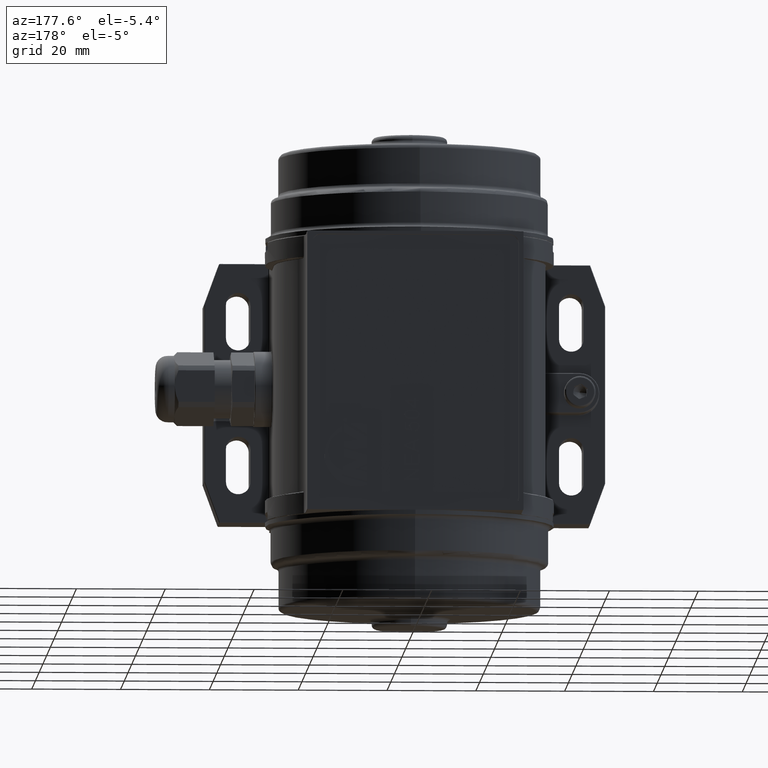
[diagram: clean part render]
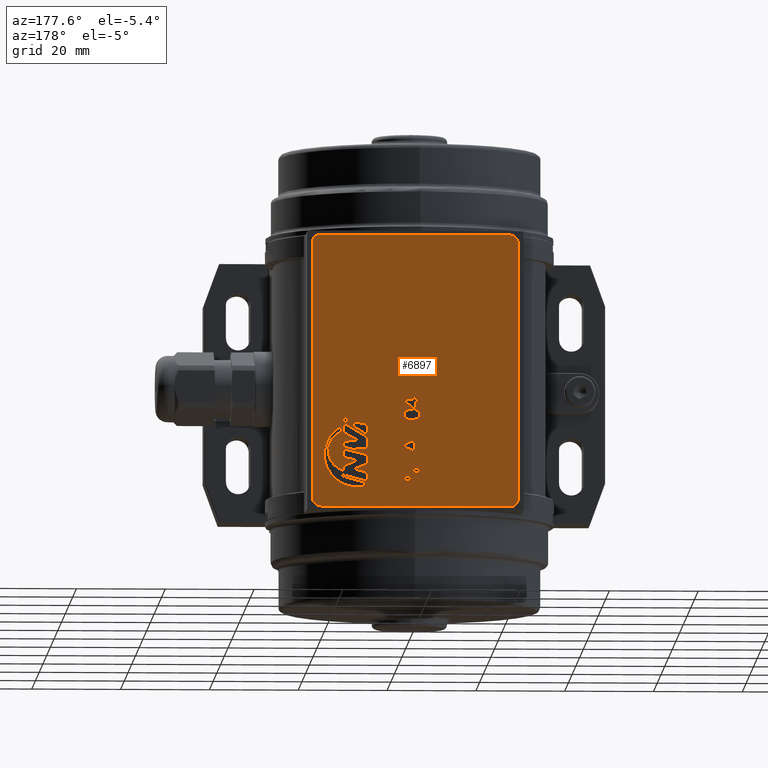
[diagram: same view with one face highlighted and labeled with its STEP entity id]
A machine part, auxiliary view. The second image highlights one B-rep face of the part: STEP entity #6897.
In plain terms, the highlighted planar face has unit normal (0, 1, 0).
Its self-contained STEP definition (entity closure, byte-faithful):
#26 = DIRECTION ( 'NONE',  ( 0.0000000000000000000, 0.0000000000000000000, -1.000000000000000000 ) ) ;
#108 = LINE ( 'NONE', #15510, #19629 ) ;
#137 = VECTOR ( 'NONE', #23485, 1000.000000000000000 ) ;
#195 = EDGE_LOOP ( 'NONE', ( #12164, #7459, #6480 ) ) ;
#225 = ORIENTED_EDGE ( 'NONE', *, *, #4601, .T. ) ;
#251 = CARTESIAN_POINT ( 'NONE',  ( -0.9919748882699129800, 31.47749999999999900, -12.96410495727152000 ) ) ;
#293 = VERTEX_POINT ( 'NONE', #11614 ) ;
#303 = CARTESIAN_POINT ( 'NONE',  ( 1.336416496207480000, 31.47749999999999900, -12.67513573301672000 ) ) ;
#304 = LINE ( 'NONE', #8683, #19222 ) ;
#316 = CARTESIAN_POINT ( 'NONE',  ( 1.116785089679092100, 31.47749999999999900, -13.13726305969179900 ) ) ;
#340 = ORIENTED_EDGE ( 'NONE', *, *, #11826, .F. ) ;
#360 = VECTOR ( 'NONE', #3825, 1000.000000000000000 ) ;
#363 = LINE ( 'NONE', #16419, #24734 ) ;
#379 = VECTOR ( 'NONE', #11878, 1000.000000000000000 ) ;
#401 = VECTOR ( 'NONE', #9256, 1000.000000000000000 ) ;
#407 = CARTESIAN_POINT ( 'NONE',  ( -0.1527607002286930100, 31.47749999999999900, -8.887734694145260400 ) ) ;
#411 = DIRECTION ( 'NONE',  ( 1.097189819554212000E-014, 0.0000000000000000000, 1.000000000000000000 ) ) ;
#456 = LINE ( 'NONE', #7824, #18777 ) ;
#469 = FACE_BOUND ( 'NONE', #195, .T. ) ;
#470 = EDGE_CURVE ( 'NONE', #8174, #19526, #23273, .T. ) ;
#506 = CARTESIAN_POINT ( 'NONE',  ( 10.76466551967318200, 31.47749999999999900, -22.62212791304889900 ) ) ;
#509 = CARTESIAN_POINT ( 'NONE',  ( 16.24115499134104800, 31.47749999999999900, -21.60415720352295200 ) ) ;
#515 = DIRECTION ( 'NONE',  ( 0.8414499297245398000, 0.0000000000000000000, -0.5403350958123737100 ) ) ;
#544 = DIRECTION ( 'NONE',  ( -1.139389293773070000E-014, 0.0000000000000000000, -1.000000000000000000 ) ) ;
#545 = CARTESIAN_POINT ( 'NONE',  ( 1.318567934030662200, 31.47749999999999900, -12.75472977888372100 ) ) ;
#558 = EDGE_CURVE ( 'NONE', #13781, #22394, #22089, .T. ) ;
#641 = DIRECTION ( 'NONE',  ( 0.0000000000000000000, 0.0000000000000000000, -1.000000000000000000 ) ) ;
#643 = VERTEX_POINT ( 'NONE', #20486 ) ;
#662 = CARTESIAN_POINT ( 'NONE',  ( -0.6030666731414199300, 31.47749999999999900, -11.75394975840973900 ) ) ;
#683 = CARTESIAN_POINT ( 'NONE',  ( 0.7430871730124259900, 31.47749999999999900, -11.03740328405078100 ) ) ;
#700 = VECTOR ( 'NONE', #4576, 1000.000000000000100 ) ;
#710 = DIRECTION ( 'NONE',  ( 0.09950371902099972000, 0.0000000000000000000, 0.9950371902099890400 ) ) ;
#743 = CARTESIAN_POINT ( 'NONE',  ( 0.3187550851812325200, 31.47749999999999900, -8.810685368080690700 ) ) ;
#745 = VERTEX_POINT ( 'NONE', #13255 ) ;
#756 = CARTESIAN_POINT ( 'NONE',  ( -0.06457324645775390500, 31.47749999999999900, -11.96028194232341900 ) ) ;
#779 = CARTESIAN_POINT ( 'NONE',  ( -0.6506936320363919700, 31.47749999999999900, -10.72509776364002000 ) ) ;
#785 = FACE_BOUND ( 'NONE', #1916, .T. ) ;
#800 = ORIENTED_EDGE ( 'NONE', *, *, #13067, .T. ) ;
#807 = CARTESIAN_POINT ( 'NONE',  ( 15.74674970327364900, 31.47749999999999900, -10.71307689486188000 ) ) ;
#838 = CARTESIAN_POINT ( 'NONE',  ( -0.5387577497003320800, 31.47749999999999900, -12.28250517726180000 ) ) ;
#843 = DIRECTION ( 'NONE',  ( -0.9680684616974030200, 0.0000000000000000000, -0.2506859658353929900 ) ) ;
#876 = CARTESIAN_POINT ( 'NONE',  ( 0.9453917535934089900, 31.47749999999999900, -12.67225797982106000 ) ) ;
#895 = AXIS2_PLACEMENT_3D ( 'NONE', #3477, #6746, #11153 ) ;
#944 = ORIENTED_EDGE ( 'NONE', *, *, #23655, .T. ) ;
#975 = CARTESIAN_POINT ( 'NONE',  ( 10.76466551967314100, 31.47749999999999900, -25.90522697908590300 ) ) ;
#988 = ORIENTED_EDGE ( 'NONE', *, *, #12498, .F. ) ;
#998 = ORIENTED_EDGE ( 'NONE', *, *, #18445, .T. ) ;
#1002 = CARTESIAN_POINT ( 'NONE',  ( 10.80269682259744000, 31.47749999999999900, -25.02978794679349800 ) ) ;
#1011 = EDGE_CURVE ( 'NONE', #11467, #19493, #108, .T. ) ;
#1138 = CARTESIAN_POINT ( 'NONE',  ( 0.1906031986534504900, 31.47749999999999900, -11.93483918148668000 ) ) ;
#1150 = CARTESIAN_POINT ( 'NONE',  ( -0.9811896354742970500, 31.47749999999999900, -9.570438101156479900 ) ) ;
#1173 = CARTESIAN_POINT ( 'NONE',  ( 2.472053519166269800, 31.47749999999999900, -6.550223796871290600 ) ) ;
#1212 = CARTESIAN_POINT ( 'NONE',  ( 16.20312368841715100, 31.47749999999999900, -17.30308742795989800 ) ) ;
#1230 = LINE ( 'NONE', #8613, #23183 ) ;
#1270 = CARTESIAN_POINT ( 'NONE',  ( 0.09384839096114250300, 31.47749999999999900, -16.19205071994819900 ) ) ;
#1273 = CIRCLE ( 'NONE', #23050, 0.5000000000000004400 ) ;
#1323 = VERTEX_POINT ( 'NONE', #16574 ) ;
#1358 = CARTESIAN_POINT ( 'NONE',  ( 1.332528642610793800, 31.47749999999999900, -12.30579313625990100 ) ) ;
#1359 = CARTESIAN_POINT ( 'NONE',  ( 2.516925314038065400, 31.47749999999999900, -21.35791610456360000 ) ) ;
#1435 = CARTESIAN_POINT ( 'NONE',  ( -0.5792285321157800700, 31.47749999999999900, -20.86432636097385200 ) ) ;
#1471 = CARTESIAN_POINT ( 'NONE',  ( -1.009246191324632000, 31.47749999999999900, -10.15024985129373800 ) ) ;
#1473 = CARTESIAN_POINT ( 'NONE',  ( 10.76466551967320000, 31.47749999999999900, -21.45190740024015200 ) ) ;
#1535 = EDGE_CURVE ( 'NONE', #17816, #17934, #1273, .T. ) ;
#1540 = CARTESIAN_POINT ( 'NONE',  ( -0.9830746859619341500, 31.47749999999999900, -22.16560841225590300 ) ) ;
#1551 = CARTESIAN_POINT ( 'NONE',  ( 10.80269682259746100, 31.47749999999999900, -23.05053469302695000 ) ) ;
#1554 = CARTESIAN_POINT ( 'NONE',  ( 0.7851561305586100000, 31.47749999999999900, -8.794138564420569200 ) ) ;
#1607 = VECTOR ( 'NONE', #23456, 1000.000000000000000 ) ;
#1674 = CARTESIAN_POINT ( 'NONE',  ( -0.5634403255042250700, 31.47749999999999900, -12.93409586623450000 ) ) ;
#1682 = DIRECTION ( 'NONE',  ( 0.0000000000000000000, 0.0000000000000000000, 1.000000000000000000 ) ) ;
#1744 = CARTESIAN_POINT ( 'NONE',  ( 13.99731526858316100, 31.47749999999999900, -17.87402588517155200 ) ) ;
#1751 = CARTESIAN_POINT ( 'NONE',  ( -0.01130783013799974000, 31.47749999999999900, -11.50134632812415900 ) ) ;
#1760 = LINE ( 'NONE', #18897, #6546 ) ;
#1811 = VERTEX_POINT ( 'NONE', #16641 ) ;
#1832 = CARTESIAN_POINT ( 'NONE',  ( -0.1202189822040446000, 31.47749999999999900, -11.52253215831920000 ) ) ;
#1836 = CARTESIAN_POINT ( 'NONE',  ( -0.4243372612230184600, 31.47749999999999900, -13.10999791343036100 ) ) ;
#1852 = VERTEX_POINT ( 'NONE', #14416 ) ;
#1855 = LINE ( 'NONE', #509, #3663 ) ;
#1898 = CARTESIAN_POINT ( 'NONE',  ( 1.837952700787709900, 31.47749999999999900, -10.88046689254425900 ) ) ;
#1916 = EDGE_LOOP ( 'NONE', ( #21753, #2448, #340, #2114, #2692, #9711, #21220, #20311 ) ) ;
#1975 = VERTEX_POINT ( 'NONE', #9225 ) ;
#1994 = VERTEX_POINT ( 'NONE', #24484 ) ;
#2017 = DIRECTION ( 'NONE',  ( 0.9926338919341299900, 0.0000000000000000000, -0.1211526169081862100 ) ) ;
#2075 = VECTOR ( 'NONE', #9697, 1000.000000000000200 ) ;
#2114 = ORIENTED_EDGE ( 'NONE', *, *, #2422, .F. ) ;
#2155 = CARTESIAN_POINT ( 'NONE',  ( -0.5306858272743880700, 31.47749999999999900, -13.58190827108336100 ) ) ;
#2156 = CARTESIAN_POINT ( 'NONE',  ( 12.51409940438069900, 31.47749999999999900, -22.17509566073454900 ) ) ;
#2170 = VERTEX_POINT ( 'NONE', #6095 ) ;
#2187 = CARTESIAN_POINT ( 'NONE',  ( 2.023335570448320500, 31.47749999999999900, -12.95917812379436100 ) ) ;
#2209 = EDGE_CURVE ( 'NONE', #18796, #21638, #6043, .T. ) ;
#2248 = CARTESIAN_POINT ( 'NONE',  ( -0.1305105833978304200, 31.47749999999999900, -6.101505848153340000 ) ) ;
#2258 = CARTESIAN_POINT ( 'NONE',  ( -0.9830746859619341500, 31.47749999999999900, -24.85791610456359600 ) ) ;
#2325 = DIRECTION ( 'NONE',  ( -0.9688688034179537800, 0.0000000000000000000, -0.2475747195564649800 ) ) ;
#2334 = CARTESIAN_POINT ( 'NONE',  ( 14.98657249096002200, 31.47749999999999900, -18.17653722392319800 ) ) ;
#2335 = ORIENTED_EDGE ( 'NONE', *, *, #16904, .F. ) ;
#2350 = EDGE_CURVE ( 'NONE', #18104, #1994, #13938, .T. ) ;
#2401 = EDGE_CURVE ( 'NONE', #9975, #21648, #13333, .T. ) ;
#2412 = CARTESIAN_POINT ( 'NONE',  ( -0.9830746859619341500, 31.47749999999999900, -18.80022379687130000 ) ) ;
#2422 = EDGE_CURVE ( 'NONE', #14204, #19072, #8169, .T. ) ;
#2432 = CARTESIAN_POINT ( 'NONE',  ( 2.516925314038065400, 31.47749999999999900, -22.16560841225590300 ) ) ;
#2448 = ORIENTED_EDGE ( 'NONE', *, *, #21604, .F. ) ;
#2453 = EDGE_CURVE ( 'NONE', #5846, #7766, #14786, .T. ) ;
#2483 = CIRCLE ( 'NONE', #24463, 1.999999999999998200 ) ;
#2579 = VECTOR ( 'NONE', #7422, 1000.000000000000100 ) ;
#2595 = VERTEX_POINT ( 'NONE', #8659 ) ;
#2669 = LINE ( 'NONE', #9666, #14722 ) ;
#2675 = CARTESIAN_POINT ( 'NONE',  ( 0.01651004743731735200, 31.47749999999999900, -11.94560305169179900 ) ) ;
#2681 = EDGE_CURVE ( 'NONE', #2170, #17781, #6329, .T. ) ;
#2689 = VERTEX_POINT ( 'NONE', #6534 ) ;
#2692 = ORIENTED_EDGE ( 'NONE', *, *, #13736, .F. ) ;
#2715 = LINE ( 'NONE', #14792, #6596 ) ;
#2720 = ORIENTED_EDGE ( 'NONE', *, *, #12608, .F. ) ;
#2721 = VECTOR ( 'NONE', #11215, 1000.000000000000000 ) ;
#2725 = VERTEX_POINT ( 'NONE', #16230 ) ;
#2731 = VERTEX_POINT ( 'NONE', #20491 ) ;
#2752 = CARTESIAN_POINT ( 'NONE',  ( 16.24115499134104800, 31.47749999999999900, -23.62147315023829800 ) ) ;
#2812 = CARTESIAN_POINT ( 'NONE',  ( 0.2191353029361710100, 31.47749999999999900, -11.93535428844703900 ) ) ;
#2830 = VECTOR ( 'NONE', #23019, 1000.000000000000000 ) ;
#2836 = DIRECTION ( 'NONE',  ( 1.051744220811940000E-014, 0.0000000000000000000, 1.000000000000000000 ) ) ;
#2857 = DIRECTION ( 'NONE',  ( 1.000000000000000000, 0.0000000000000000000, -1.492235248152091800E-016 ) ) ;
#2868 = EDGE_LOOP ( 'NONE', ( #3887, #22575, #18782, #4312, #5568, #6417, #225, #6544 ) ) ;
#2895 = DIRECTION ( 'NONE',  ( 0.9720923224315560800, 0.0000000000000000000, 0.2345986288741335200 ) ) ;
#2908 = VERTEX_POINT ( 'NONE', #11262 ) ;
#2951 = CARTESIAN_POINT ( 'NONE',  ( 10.76466551967326000, 31.47749999999999900, -14.56258322074976000 ) ) ;
#2970 = CARTESIAN_POINT ( 'NONE',  ( -21.25000000000000000, 31.47749999999999900, 30.75000000000000000 ) ) ;
#2975 = CARTESIAN_POINT ( 'NONE',  ( -23.25000000000000000, 31.47749999999999900, 28.75000000000000000 ) ) ;
#3013 = VERTEX_POINT ( 'NONE', #7605 ) ;
#3077 = CARTESIAN_POINT ( 'NONE',  ( 2.516925314038065400, 31.47749999999999900, -9.915608412255911800 ) ) ;
#3078 = CARTESIAN_POINT ( 'NONE',  ( 2.516925314038065400, 31.47749999999999900, -17.21638966225590300 ) ) ;
#3083 = ORIENTED_EDGE ( 'NONE', *, *, #7880, .T. ) ;
#3212 = EDGE_CURVE ( 'NONE', #6894, #7297, #17448, .T. ) ;
#3235 = CARTESIAN_POINT ( 'NONE',  ( 1.967012209849244900, 31.47749999999999900, -9.011181207860460100 ) ) ;
#3281 = CARTESIAN_POINT ( 'NONE',  ( 0.9464124935252459200, 31.47749999999999900, -12.63736321994822000 ) ) ;
#3286 = CARTESIAN_POINT ( 'NONE',  ( 2.516925314038065400, 31.47749999999999900, -24.33628148917900100 ) ) ;
#3288 = CARTESIAN_POINT ( 'NONE',  ( 1.033660224458413900, 31.47749999999999900, -11.78188281731544000 ) ) ;
#3311 = DIRECTION ( 'NONE',  ( 0.0000000000000000000, 1.000000000000000000, 0.0000000000000000000 ) ) ;
#3312 = VERTEX_POINT ( 'NONE', #17111 ) ;
#3315 = ORIENTED_EDGE ( 'NONE', *, *, #23424, .T. ) ;
#3348 = CARTESIAN_POINT ( 'NONE',  ( 0.7931053857112200200, 31.47749999999999900, -11.03695120061934000 ) ) ;
#3400 = CARTESIAN_POINT ( 'NONE',  ( -0.6907068975003950500, 31.47749999999999900, -10.69735921353795900 ) ) ;
#3433 = EDGE_CURVE ( 'NONE', #5318, #24662, #19285, .T. ) ;
#3468 = CARTESIAN_POINT ( 'NONE',  ( 21.25000000000000000, 31.47749999999999900, -28.75000000000000000 ) ) ;
#3477 = CARTESIAN_POINT ( 'NONE',  ( 12.94050423011940000, 31.47749999999999900, -17.97082512300675100 ) ) ;
#3492 = ORIENTED_EDGE ( 'NONE', *, *, #5638, .T. ) ;
#3511 = VERTEX_POINT ( 'NONE', #8841 ) ;
#3604 = VECTOR ( 'NONE', #6288, 1000.000000000000000 ) ;
#3637 = CARTESIAN_POINT ( 'NONE',  ( 1.036156083268835900, 31.47749999999999900, -20.86432636097385200 ) ) ;
#3663 = VECTOR ( 'NONE', #8298, 1000.000000000000100 ) ;
#3665 = EDGE_CURVE ( 'NONE', #5926, #17533, #6641, .T. ) ;
#3668 = CARTESIAN_POINT ( 'NONE',  ( 2.443647206621159600, 31.47749999999999900, -10.33560794711511800 ) ) ;
#3683 = CARTESIAN_POINT ( 'NONE',  ( -0.6025097705972529700, 31.47749999999999900, -12.82537537466354000 ) ) ;
#3752 = CARTESIAN_POINT ( 'NONE',  ( 1.643167838448584800, 31.47749999999999900, -10.94289468988366000 ) ) ;
#3771 = CARTESIAN_POINT ( 'NONE',  ( 2.516925314038065400, 31.47749999999999900, -22.65919815584565100 ) ) ;
#3783 = EDGE_CURVE ( 'NONE', #7003, #2595, #12086, .T. ) ;
#3786 = DIRECTION ( 'NONE',  ( 1.000000000000000000, 0.0000000000000000000, 0.0000000000000000000 ) ) ;
#3802 = CARTESIAN_POINT ( 'NONE',  ( 0.3182073653201189500, 31.47749999999999900, -6.550223796871290600 ) ) ;
#3822 = LINE ( 'NONE', #20067, #11950 ) ;
#3825 = DIRECTION ( 'NONE',  ( 0.0000000000000000000, 0.0000000000000000000, 1.000000000000000000 ) ) ;
#3835 = CARTESIAN_POINT ( 'NONE',  ( 1.170533734691212100, 31.47749999999999900, -11.02098488897974000 ) ) ;
#3854 = CARTESIAN_POINT ( 'NONE',  ( -0.4227222547537910500, 31.47749999999999900, -11.63569457556520000 ) ) ;
#3887 = ORIENTED_EDGE ( 'NONE', *, *, #9936, .T. ) ;
#3894 = VECTOR ( 'NONE', #10426, 1000.000000000000100 ) ;
#3917 = CARTESIAN_POINT ( 'NONE',  ( 2.472053519166269800, 31.47749999999999900, -13.32586482251232100 ) ) ;
#4072 = FACE_BOUND ( 'NONE', #5887, .T. ) ;
#4097 = CARTESIAN_POINT ( 'NONE',  ( -0.8770003973835169800, 31.47749999999999900, -13.24028595206331900 ) ) ;
#4099 = CARTESIAN_POINT ( 'NONE',  ( 10.80269682259750000, 31.47749999999999900, -19.05396549254505300 ) ) ;
#4167 = CARTESIAN_POINT ( 'NONE',  ( 10.76466551967314100, 31.47749999999999900, -25.44847660072309700 ) ) ;
#4173 = VERTEX_POINT ( 'NONE', #975 ) ;
#4179 = LINE ( 'NONE', #11564, #2075 ) ;
#4225 = VECTOR ( 'NONE', #544, 1000.000000000000000 ) ;
#4308 = CARTESIAN_POINT ( 'NONE',  ( 1.135364631368299900, 31.47749999999999900, -13.11250400497906000 ) ) ;
#4312 = ORIENTED_EDGE ( 'NONE', *, *, #18105, .T. ) ;
#4321 = VECTOR ( 'NONE', #23471, 1000.000000000000100 ) ;
#4345 = VECTOR ( 'NONE', #2895, 1000.000000000000100 ) ;
#4346 = CARTESIAN_POINT ( 'NONE',  ( 10.80269682259750000, 31.47749999999999900, -19.05396549254505300 ) ) ;
#4361 = FACE_BOUND ( 'NONE', #12660, .T. ) ;
#4433 = VECTOR ( 'NONE', #12939, 1000.000000000000000 ) ;
#4440 = LINE ( 'NONE', #9722, #22797 ) ;
#4511 = CARTESIAN_POINT ( 'NONE',  ( 0.06925610917641880600, 31.47749999999999900, -8.842120717063929500 ) ) ;
#4524 = EDGE_CURVE ( 'NONE', #20113, #5513, #24228, .T. ) ;
#4527 = CARTESIAN_POINT ( 'NONE',  ( -0.4546123215169740100, 31.47749999999999900, -12.17020231706427900 ) ) ;
#4576 = DIRECTION ( 'NONE',  ( -0.8739870891747548700, 0.0000000000000000000, -0.4859491413263729000 ) ) ;
#4594 = CARTESIAN_POINT ( 'NONE',  ( -0.04531830613676179900, 31.47749999999999900, -8.862513660467049800 ) ) ;
#4601 = EDGE_CURVE ( 'NONE', #15972, #13819, #304, .T. ) ;
#4604 = CARTESIAN_POINT ( 'NONE',  ( -0.2521056989787779900, 31.47749999999999900, -13.69475692747970000 ) ) ;
#4676 = CARTESIAN_POINT ( 'NONE',  ( 23.25000000000000000, 31.47749999999999900, -28.75000000000000000 ) ) ;
#4680 = CARTESIAN_POINT ( 'NONE',  ( -0.4348791652480135100, 31.47749999999999900, -8.986648028138899800 ) ) ;
#4721 = CARTESIAN_POINT ( 'NONE',  ( 14.74250660837637900, 31.47749999999999900, -12.08377012834670000 ) ) ;
#4766 = CARTESIAN_POINT ( 'NONE',  ( -1.003494648144206000, 31.47749999999999900, -12.37682030775604100 ) ) ;
#4792 = DIRECTION ( 'NONE',  ( -0.9294238257626786800, 0.0000000000000000000, 0.3690140269754874100 ) ) ;
#4817 = CARTESIAN_POINT ( 'NONE',  ( 0.9269660543804190100, 31.47749999999999900, -12.83533575363518000 ) ) ;
#4832 = CARTESIAN_POINT ( 'NONE',  ( 0.7926022697058410200, 31.47749999999999900, -12.15800380610806100 ) ) ;
#4841 = DIRECTION ( 'NONE',  ( 1.255059628328050100E-014, 0.0000000000000000000, 1.000000000000000000 ) ) ;
#4845 = CARTESIAN_POINT ( 'NONE',  ( -1.026554726875863900, 31.47749999999999900, -9.824256209185339400 ) ) ;
#4857 = VECTOR ( 'NONE', #7867, 1000.000000000000000 ) ;
#4904 = LINE ( 'NONE', #12340, #700 ) ;
#4925 = CARTESIAN_POINT ( 'NONE',  ( -0.7261155108435299900, 31.47749999999999900, -9.172449301027020500 ) ) ;
#4939 = LINE ( 'NONE', #18117, #24816 ) ;
#4957 = CARTESIAN_POINT ( 'NONE',  ( 0.6771817242944779800, 31.47749999999999900, -13.68483918148666100 ) ) ;
#5069 = DIRECTION ( 'NONE',  ( 0.0000000000000000000, 0.0000000000000000000, 1.000000000000000000 ) ) ;
#5135 = CARTESIAN_POINT ( 'NONE',  ( -0.02117799253013895000, 31.47749999999999900, -13.27655001548681900 ) ) ;
#5172 = CARTESIAN_POINT ( 'NONE',  ( -1.027946480833730200, 31.47749999999999900, -9.915608412255911800 ) ) ;
#5192 = VERTEX_POINT ( 'NONE', #14525 ) ;
#5209 = ORIENTED_EDGE ( 'NONE', *, *, #7591, .T. ) ;
#5213 = EDGE_CURVE ( 'NONE', #2731, #15972, #23123, .T. ) ;
#5232 = LINE ( 'NONE', #19599, #137 ) ;
#5276 = EDGE_CURVE ( 'NONE', #20214, #13056, #6268, .T. ) ;
#5296 = CARTESIAN_POINT ( 'NONE',  ( -0.1305105833978304200, 31.47749999999999900, -6.101505848153340000 ) ) ;
#5318 = VERTEX_POINT ( 'NONE', #12853 ) ;
#5331 = CARTESIAN_POINT ( 'NONE',  ( -0.9830746859619341500, 31.47749999999999900, -15.79381354046105200 ) ) ;
#5335 = VECTOR ( 'NONE', #8029, 1000.000000000000000 ) ;
#5337 = CARTESIAN_POINT ( 'NONE',  ( -0.7713311499532070600, 31.47749999999999900, -10.62564128471480100 ) ) ;
#5386 = CARTESIAN_POINT ( 'NONE',  ( 2.113079160191909900, 31.47749999999999900, -20.86432636097385200 ) ) ;
#5403 = DIRECTION ( 'NONE',  ( 0.0000000000000000000, 0.0000000000000000000, 1.000000000000000000 ) ) ;
#5419 = CARTESIAN_POINT ( 'NONE',  ( 16.16509238549254900, 31.47749999999999900, -17.75983877483865200 ) ) ;
#5421 = CARTESIAN_POINT ( 'NONE',  ( -1.024540847977340100, 31.47749999999999900, -10.03499935154946100 ) ) ;
#5435 = LINE ( 'NONE', #19857, #4225 ) ;
#5456 = LINE ( 'NONE', #3917, #360 ) ;
#5477 = CARTESIAN_POINT ( 'NONE',  ( 21.25000000000000000, 31.47749999999999900, 28.75000000000000000 ) ) ;
#5482 = CARTESIAN_POINT ( 'NONE',  ( 13.18141854453754100, 31.47749999999999900, -19.03613619120610100 ) ) ;
#5494 = CARTESIAN_POINT ( 'NONE',  ( 2.269237917098720000, 31.47749999999999900, -9.219997804512178900 ) ) ;
#5513 = VERTEX_POINT ( 'NONE', #13658 ) ;
#5535 = CARTESIAN_POINT ( 'NONE',  ( -0.2253360365947740000, 31.47749999999999900, -11.55089413898189900 ) ) ;
#5568 = ORIENTED_EDGE ( 'NONE', *, *, #23001, .T. ) ;
#5571 = VECTOR ( 'NONE', #515, 1000.000000000000100 ) ;
#5638 = EDGE_CURVE ( 'NONE', #9539, #12872, #14702, .T. ) ;
#5678 = CIRCLE ( 'NONE', #12970, 4.563896480437680500 ) ;
#5680 = CARTESIAN_POINT ( 'NONE',  ( 2.273563835093034900, 31.47749999999999900, -10.60010269536504000 ) ) ;
#5700 = VERTEX_POINT ( 'NONE', #4957 ) ;
#5710 = LINE ( 'NONE', #5386, #9624 ) ;
#5715 = DIRECTION ( 'NONE',  ( 0.9241502961964777100, 0.0000000000000000000, -0.3820290958028753600 ) ) ;
#5751 = ORIENTED_EDGE ( 'NONE', *, *, #6672, .T. ) ;
#5760 = CARTESIAN_POINT ( 'NONE',  ( 1.034409832270784000, 31.47749999999999900, -11.03057365627472000 ) ) ;
#5834 = EDGE_CURVE ( 'NONE', #5700, #19769, #9850, .T. ) ;
#5846 = VERTEX_POINT ( 'NONE', #7779 ) ;
#5851 = CARTESIAN_POINT ( 'NONE',  ( -0.09475337185937270100, 31.47749999999999900, -22.65919815584565100 ) ) ;
#5862 = FACE_BOUND ( 'NONE', #24705, .T. ) ;
#5867 = DIRECTION ( 'NONE',  ( 0.0000000000000000000, 1.000000000000000000, 0.0000000000000000000 ) ) ;
#5887 = EDGE_LOOP ( 'NONE', ( #13532, #9416, #19388, #16434, #15812, #9643, #3315, #800, #6406, #6573, #16868 ) ) ;
#5909 = VERTEX_POINT ( 'NONE', #17551 ) ;
#5926 = VERTEX_POINT ( 'NONE', #6181 ) ;
#5932 = DIRECTION ( 'NONE',  ( -0.9680968082915336600, 0.0000000000000000000, -0.2505764749048594000 ) ) ;
#5943 = CARTESIAN_POINT ( 'NONE',  ( 16.24115499134104800, 31.47749999999999900, -23.62147315023829800 ) ) ;
#5973 = VECTOR ( 'NONE', #22048, 1000.000000000000100 ) ;
#6016 = CARTESIAN_POINT ( 'NONE',  ( -1.012694583523775900, 31.47749999999999900, -12.86149734759640000 ) ) ;
#6042 = ORIENTED_EDGE ( 'NONE', *, *, #13489, .T. ) ;
#6043 = LINE ( 'NONE', #4099, #10586 ) ;
#6095 = CARTESIAN_POINT ( 'NONE',  ( 2.516925314038065400, 31.47749999999999900, -16.65969895712770200 ) ) ;
#6100 = VERTEX_POINT ( 'NONE', #2752 ) ;
#6106 = VECTOR ( 'NONE', #14476, 1000.000000000000100 ) ;
#6135 = EDGE_CURVE ( 'NONE', #13444, #12559, #3822, .T. ) ;
#6140 = VECTOR ( 'NONE', #4841, 1000.000000000000000 ) ;
#6152 = FACE_BOUND ( 'NONE', #14181, .T. ) ;
#6177 = VECTOR ( 'NONE', #13968, 1000.000000000000000 ) ;
#6181 = CARTESIAN_POINT ( 'NONE',  ( 1.350258647371400000, 31.47749999999999900, -12.51326466225590100 ) ) ;
#6202 = DIRECTION ( 'NONE',  ( 0.0000000000000000000, 0.0000000000000000000, 1.000000000000000000 ) ) ;
#6213 = CARTESIAN_POINT ( 'NONE',  ( 2.472053519166269800, 31.47749999999999900, -13.32586482251229900 ) ) ;
#6268 = CIRCLE ( 'NONE', #12714, 7.281833796189427900 ) ;
#6288 = DIRECTION ( 'NONE',  ( 1.000000000000000000, 0.0000000000000000000, 0.0000000000000000000 ) ) ;
#6329 = LINE ( 'NONE', #18066, #19589 ) ;
#6351 = CARTESIAN_POINT ( 'NONE',  ( -0.4991431010107390000, 31.47749999999999900, -12.22498942590720000 ) ) ;
#6376 = VECTOR ( 'NONE', #9062, 1000.000000000000000 ) ;
#6395 = EDGE_CURVE ( 'NONE', #19220, #20113, #10007, .T. ) ;
#6400 = CARTESIAN_POINT ( 'NONE',  ( -0.9830746859619400300, 31.47749999999999900, -15.27007555969179900 ) ) ;
#6406 = ORIENTED_EDGE ( 'NONE', *, *, #2453, .T. ) ;
#6409 = ORIENTED_EDGE ( 'NONE', *, *, #3212, .T. ) ;
#6413 = CARTESIAN_POINT ( 'NONE',  ( 16.43131040599714900, 31.47749999999999900, -23.88791103237025100 ) ) ;
#6417 = ORIENTED_EDGE ( 'NONE', *, *, #5213, .T. ) ;
#6422 = LINE ( 'NONE', #3771, #2830 ) ;
#6448 = CARTESIAN_POINT ( 'NONE',  ( 16.16509238550509800, 31.47749999999999900, -11.86014073796939900 ) ) ;
#6451 = CARTESIAN_POINT ( 'NONE',  ( 2.516925314038065400, 31.47749999999999900, -9.915608412255911800 ) ) ;
#6480 = ORIENTED_EDGE ( 'NONE', *, *, #2401, .F. ) ;
#6483 = EDGE_CURVE ( 'NONE', #8891, #293, #8951, .T. ) ;
#6487 = ORIENTED_EDGE ( 'NONE', *, *, #8848, .T. ) ;
#6506 = CARTESIAN_POINT ( 'NONE',  ( -0.6619190192412080000, 31.47749999999999900, -9.120664593401109200 ) ) ;
#6515 = CARTESIAN_POINT ( 'NONE',  ( -0.8224300130805379800, 31.47749999999999900, -13.32215933295462000 ) ) ;
#6524 = VERTEX_POINT ( 'NONE', #6995 ) ;
#6534 = CARTESIAN_POINT ( 'NONE',  ( 0.09384839096114250300, 31.47749999999999900, -17.68403789943540300 ) ) ;
#6544 = ORIENTED_EDGE ( 'NONE', *, *, #7278, .T. ) ;
#6546 = VECTOR ( 'NONE', #11454, 1000.000000000000000 ) ;
#6573 = ORIENTED_EDGE ( 'NONE', *, *, #15198, .T. ) ;
#6596 = VECTOR ( 'NONE', #7264, 1000.000000000000000 ) ;
#6609 = CARTESIAN_POINT ( 'NONE',  ( 10.72663476673175800, 31.47749999999999900, -17.53146261714159900 ) ) ;
#6641 = B_SPLINE_CURVE_WITH_KNOTS ( 'NONE', 3,
 ( #20511, #11120, #22456, #1358, #10957, #24595, #12914, #20755, #14825, #3288, #16746, #9238, #18650, #22705, #7134, #11198, #11039, #24503, #7543 ),
 .UNSPECIFIED., .F., .F.,
 ( 4, 1, 1, 1, 1, 1, 1, 1, 1, 1, 1, 1, 1, 1, 1, 1, 4 ),
 ( 0.0000000000000000000, 0.06199741907572160100, 0.1220879540822922000, 0.1813753107870024700, 0.2395080083953659800, 0.2978356978967510200, 0.3568799706531175000, 0.4172818251154285000, 0.4796404090798149800, 0.5425000674783560000, 0.6049624196481899800, 0.6669910330782639100, 0.7302162430101639700, 0.7941728632512570200, 0.8604581431502610300, 0.9285781799847829800, 1.000000000000000000 ),
 .UNSPECIFIED. ) ;
#6671 = AXIS2_PLACEMENT_3D ( 'NONE', #23134, #9770, #26 ) ;
#6672 = EDGE_CURVE ( 'NONE', #15777, #10996, #17033, .T. ) ;
#6677 = CARTESIAN_POINT ( 'NONE',  ( -0.7839436021739331100, 31.47749999999999900, -9.228719458333150900 ) ) ;
#6681 = CARTESIAN_POINT ( 'NONE',  ( -1.026935530918719800, 31.47749999999999900, -12.59660776524776100 ) ) ;
#6688 = CARTESIAN_POINT ( 'NONE',  ( -0.6221951170045960700, 31.47749999999999900, -12.56061802993776100 ) ) ;
#6738 = CARTESIAN_POINT ( 'NONE',  ( 15.74674970327364900, 31.47749999999999900, -11.71307689486188000 ) ) ;
#6746 = DIRECTION ( 'NONE',  ( 0.0000000000000000000, 1.000000000000000000, 0.0000000000000000000 ) ) ;
#6751 = CARTESIAN_POINT ( 'NONE',  ( 13.73109724807864000, 31.47749999999999900, -22.28928373958324700 ) ) ;
#6808 = CARTESIAN_POINT ( 'NONE',  ( 0.6999649142535540000, 31.47749999999999900, -13.18960319597576000 ) ) ;
#6827 = CARTESIAN_POINT ( 'NONE',  ( 0.8332072111935410200, 31.47749999999999900, -12.21140438040260000 ) ) ;
#6894 = VERTEX_POINT ( 'NONE', #15687 ) ;
#6897 = ADVANCED_FACE ( 'NONE', ( #4072, #6152, #24563, #9466, #469, #23316, #18199, #4361, #5862, #785, #13127, #20017, #23956 ), #21296, .T. ) ;
#6912 = DIRECTION ( 'NONE',  ( 0.0000000000000000000, 0.0000000000000000000, -1.000000000000000000 ) ) ;
#6913 = VERTEX_POINT ( 'NONE', #316 ) ;
#6914 = VECTOR ( 'NONE', #13948, 1000.000000000000100 ) ;
#6928 = CARTESIAN_POINT ( 'NONE',  ( 2.472053519166269800, 31.47749999999999900, -11.66560841225590100 ) ) ;
#6952 = EDGE_CURVE ( 'NONE', #13609, #18104, #17606, .T. ) ;
#6995 = CARTESIAN_POINT ( 'NONE',  ( -0.1305105833978304200, 31.47749999999999900, -6.550223796871290600 ) ) ;
#7003 = VERTEX_POINT ( 'NONE', #19950 ) ;
#7008 = VECTOR ( 'NONE', #22602, 1000.000000000000000 ) ;
#7030 = VECTOR ( 'NONE', #2325, 1000.000000000000000 ) ;
#7071 = DIRECTION ( 'NONE',  ( 0.0000000000000000000, 0.0000000000000000000, -1.000000000000000000 ) ) ;
#7111 = EDGE_CURVE ( 'NONE', #18506, #21263, #20580, .T. ) ;
#7134 = CARTESIAN_POINT ( 'NONE',  ( 0.5647781156132800600, 31.47749999999999900, -11.52645579756518000 ) ) ;
#7155 = ORIENTED_EDGE ( 'NONE', *, *, #11662, .F. ) ;
#7169 = CARTESIAN_POINT ( 'NONE',  ( 1.843169261361924800, 31.47749999999999900, -8.958295544687040000 ) ) ;
#7199 = VECTOR ( 'NONE', #24586, 1000.000000000000000 ) ;
#7252 = CARTESIAN_POINT ( 'NONE',  ( 1.098640657234510000, 31.47749999999999900, -8.804502588307089500 ) ) ;
#7264 = DIRECTION ( 'NONE',  ( 1.000000000000000000, 0.0000000000000000000, 0.0000000000000000000 ) ) ;
#7276 = CARTESIAN_POINT ( 'NONE',  ( 10.76466551967320000, 31.47749999999999900, -21.45190740024015200 ) ) ;
#7278 = EDGE_CURVE ( 'NONE', #13819, #22343, #8259, .T. ) ;
#7284 = ORIENTED_EDGE ( 'NONE', *, *, #3665, .T. ) ;
#7297 = VERTEX_POINT ( 'NONE', #22431 ) ;
#7350 = AXIS2_PLACEMENT_3D ( 'NONE', #24110, #22314, #18180 ) ;
#7359 = CARTESIAN_POINT ( 'NONE',  ( 1.535598933032170000, 31.47749999999999900, -10.96768700124230000 ) ) ;
#7407 = LINE ( 'NONE', #19399, #5335 ) ;
#7409 = CARTESIAN_POINT ( 'NONE',  ( 2.023335570448320500, 31.47749999999999900, -12.95917812379436100 ) ) ;
#7422 = DIRECTION ( 'NONE',  ( 0.9678332235572313400, 0.0000000000000000000, 0.2515926298181610500 ) ) ;
#7443 = CARTESIAN_POINT ( 'NONE',  ( 2.472053519166269800, 31.47749999999999900, -11.66560841225590100 ) ) ;
#7454 = ORIENTED_EDGE ( 'NONE', *, *, #19171, .F. ) ;
#7459 = ORIENTED_EDGE ( 'NONE', *, *, #15391, .F. ) ;
#7506 = LINE ( 'NONE', #7922, #11164 ) ;
#7539 = DIRECTION ( 'NONE',  ( 1.068177887604512200E-014, 0.0000000000000000000, 1.000000000000000000 ) ) ;
#7543 = CARTESIAN_POINT ( 'NONE',  ( 0.2172458268585795200, 31.47749999999999900, -11.48612123276871900 ) ) ;
#7550 = VECTOR ( 'NONE', #8156, 1000.000000000000000 ) ;
#7591 = EDGE_CURVE ( 'NONE', #12543, #23889, #4939, .T. ) ;
#7601 = CARTESIAN_POINT ( 'NONE',  ( 2.007357527361130200, 31.47749999999999900, -10.80167074409273900 ) ) ;
#7605 = CARTESIAN_POINT ( 'NONE',  ( 2.113079160191909900, 31.47749999999999900, -18.88996738661489900 ) ) ;
#7611 = CARTESIAN_POINT ( 'NONE',  ( 0.2172458268585795200, 31.47749999999999900, -11.48612123276871900 ) ) ;
#7664 = VERTEX_POINT ( 'NONE', #18889 ) ;
#7681 = CARTESIAN_POINT ( 'NONE',  ( -0.1305105833978304200, 31.47749999999999900, -8.524582771230260600 ) ) ;
#7682 = CARTESIAN_POINT ( 'NONE',  ( 2.324852782722965000, 31.47749999999999900, -10.53994605256131900 ) ) ;
#7700 = CARTESIAN_POINT ( 'NONE',  ( -0.3258612335571454700, 31.47749999999999900, -13.17745146023371900 ) ) ;
#7724 = ORIENTED_EDGE ( 'NONE', *, *, #2209, .F. ) ;
#7766 = VERTEX_POINT ( 'NONE', #2248 ) ;
#7772 = CARTESIAN_POINT ( 'NONE',  ( 10.80269682259744000, 31.47749999999999900, -25.02978794679349800 ) ) ;
#7779 = CARTESIAN_POINT ( 'NONE',  ( 0.3182073653201155100, 31.47749999999999900, -6.101505848153350600 ) ) ;
#7789 = DIRECTION ( 'NONE',  ( 0.8594219675183886200, 0.0000000000000000000, 0.5112669378581228300 ) ) ;
#7801 = DIRECTION ( 'NONE',  ( 1.032955956543346000E-014, 0.0000000000000000000, 1.000000000000000000 ) ) ;
#7824 = CARTESIAN_POINT ( 'NONE',  ( 10.72663476673177900, 31.47749999999999900, -15.09545898501190000 ) ) ;
#7867 = DIRECTION ( 'NONE',  ( -1.031899923540284100E-014, 0.0000000000000000000, -1.000000000000000000 ) ) ;
#7868 = LINE ( 'NONE', #5943, #4857 ) ;
#7880 = EDGE_CURVE ( 'NONE', #20795, #8891, #24189, .T. ) ;
#7922 = CARTESIAN_POINT ( 'NONE',  ( 16.16509238549254900, 31.47749999999999900, -19.62490394975640100 ) ) ;
#7995 = EDGE_LOOP ( 'NONE', ( #9737, #2335, #9937, #22368, #18510, #7155, #7454 ) ) ;
#8000 = CARTESIAN_POINT ( 'NONE',  ( -23.25000000000000000, 31.47749999999999900, 30.75000000000000000 ) ) ;
#8020 = CARTESIAN_POINT ( 'NONE',  ( -0.2531181623316505200, 31.47749999999999900, -8.917161719171048200 ) ) ;
#8029 = DIRECTION ( 'NONE',  ( -1.000000000000000000, 0.0000000000000000000, 0.0000000000000000000 ) ) ;
#8105 = CARTESIAN_POINT ( 'NONE',  ( 0.7430871730124259900, 31.47749999999999900, -8.793813540461039600 ) ) ;
#8156 = DIRECTION ( 'NONE',  ( -1.000000000000000000, 0.0000000000000000000, 0.0000000000000000000 ) ) ;
#8169 = LINE ( 'NONE', #13568, #21727 ) ;
#8174 = VERTEX_POINT ( 'NONE', #20698 ) ;
#8217 = DIRECTION ( 'NONE',  ( 0.0000000000000000000, 0.0000000000000000000, -1.000000000000000000 ) ) ;
#8237 = VERTEX_POINT ( 'NONE', #19521 ) ;
#8259 = CIRCLE ( 'NONE', #22076, 1.999999999999998200 ) ;
#8298 = DIRECTION ( 'NONE',  ( 0.9219493867115629000, 0.0000000000000000000, -0.3873103772714759400 ) ) ;
#8317 = CARTESIAN_POINT ( 'NONE',  ( -0.5681845658135270500, 31.47749999999999900, -10.78229584134643900 ) ) ;
#8386 = CARTESIAN_POINT ( 'NONE',  ( -0.5693525156188310500, 31.47749999999999900, -12.34588564687804000 ) ) ;
#8389 = CARTESIAN_POINT ( 'NONE',  ( -0.9830746859619341500, 31.47749999999999900, -22.68724302764054800 ) ) ;
#8434 = CARTESIAN_POINT ( 'NONE',  ( 0.7597553037864469600, 31.47749999999999900, -13.13317812407627900 ) ) ;
#8435 = EDGE_CURVE ( 'NONE', #1994, #11467, #5232, .T. ) ;
#8465 = CARTESIAN_POINT ( 'NONE',  ( -1.027946480833730200, 31.47749999999999900, -12.64227107251232100 ) ) ;
#8476 = CARTESIAN_POINT ( 'NONE',  ( 0.1906031986534504900, 31.47749999999999900, -11.93483918148668000 ) ) ;
#8477 = DIRECTION ( 'NONE',  ( -1.139389293775380100E-014, 0.0000000000000000000, -1.000000000000000000 ) ) ;
#8495 = CARTESIAN_POINT ( 'NONE',  ( 0.5119575903117790100, 31.47749999999999900, -11.03404820088438000 ) ) ;
#8504 = CARTESIAN_POINT ( 'NONE',  ( 2.113079160191909900, 31.47749999999999900, -20.86432636097385200 ) ) ;
#8508 = ORIENTED_EDGE ( 'NONE', *, *, #14635, .T. ) ;
#8530 = DIRECTION ( 'NONE',  ( 0.0000000000000000000, 0.0000000000000000000, 1.000000000000000000 ) ) ;
#8549 = CARTESIAN_POINT ( 'NONE',  ( -1.001658873134252200, 31.47749999999999900, -9.651117934024748400 ) ) ;
#8584 = CARTESIAN_POINT ( 'NONE',  ( -0.9830746859619341500, 31.47749999999999900, -18.08227507892254900 ) ) ;
#8598 = CARTESIAN_POINT ( 'NONE',  ( 0.6549496907937210100, 31.47749999999999900, -13.22055464510227900 ) ) ;
#8613 = CARTESIAN_POINT ( 'NONE',  ( -0.9830746859619341500, 31.47749999999999900, -22.16560841225590300 ) ) ;
#8614 = CARTESIAN_POINT ( 'NONE',  ( 0.9354486816385329000, 31.47749999999999900, -12.47520326275342100 ) ) ;
#8630 = CARTESIAN_POINT ( 'NONE',  ( -0.5169315156969149800, 31.47749999999999900, -9.026903380209709800 ) ) ;
#8654 = VERTEX_POINT ( 'NONE', #16565 ) ;
#8659 = CARTESIAN_POINT ( 'NONE',  ( 2.472053519166269800, 31.47749999999999900, -6.550223796871290600 ) ) ;
#8669 = EDGE_CURVE ( 'NONE', #19138, #1852, #10650, .T. ) ;
#8683 = CARTESIAN_POINT ( 'NONE',  ( -23.25000000000000000, 31.47749999999999900, -30.75000000000000000 ) ) ;
#8689 = ORIENTED_EDGE ( 'NONE', *, *, #2681, .T. ) ;
#8703 = VECTOR ( 'NONE', #22383, 1000.000000000000000 ) ;
#8706 = VERTEX_POINT ( 'NONE', #3286 ) ;
#8754 = AXIS2_PLACEMENT_3D ( 'NONE', #12220, #23462, #6202 ) ;
#8764 = CARTESIAN_POINT ( 'NONE',  ( 0.9464124935252459200, 31.47749999999999900, -12.63736321994822000 ) ) ;
#8793 = CARTESIAN_POINT ( 'NONE',  ( -0.8350787105617589700, 31.47749999999999900, -9.289418206183949400 ) ) ;
#8810 = ORIENTED_EDGE ( 'NONE', *, *, #15202, .T. ) ;
#8841 = CARTESIAN_POINT ( 'NONE',  ( -0.6241003269875751200, 31.47749999999999900, -12.63946658533281900 ) ) ;
#8848 = EDGE_CURVE ( 'NONE', #6913, #5926, #20798, .T. ) ;
#8891 = VERTEX_POINT ( 'NONE', #15839 ) ;
#8947 = CARTESIAN_POINT ( 'NONE',  ( 0.3182073653201155100, 31.47749999999999900, -8.524582771230260600 ) ) ;
#8951 = LINE ( 'NONE', #9185, #4433 ) ;
#8960 = CARTESIAN_POINT ( 'NONE',  ( 13.73109724807864000, 31.47749999999999900, -22.28928373958324700 ) ) ;
#9013 = CARTESIAN_POINT ( 'NONE',  ( -23.25000000000000000, 31.47749999999999900, -30.75000000000000000 ) ) ;
#9057 = EDGE_CURVE ( 'NONE', #10532, #5192, #13064, .T. ) ;
#9062 = DIRECTION ( 'NONE',  ( 0.0000000000000000000, 0.0000000000000000000, -1.000000000000000000 ) ) ;
#9075 = CARTESIAN_POINT ( 'NONE',  ( 0.004104801217551939900, 31.47749999999999900, -13.28099302764052000 ) ) ;
#9097 = CARTESIAN_POINT ( 'NONE',  ( -0.1305105833978304200, 31.47749999999999900, -6.550223796871290600 ) ) ;
#9113 = CARTESIAN_POINT ( 'NONE',  ( 2.079519635769184700, 31.47749999999999900, -9.070711790909399500 ) ) ;
#9162 = DIRECTION ( 'NONE',  ( 0.0000000000000000000, 0.0000000000000000000, 1.000000000000000000 ) ) ;
#9185 = CARTESIAN_POINT ( 'NONE',  ( 0.6323099294226820500, 31.47749999999999900, -19.02458277123024600 ) ) ;
#9225 = CARTESIAN_POINT ( 'NONE',  ( 13.16062990414544000, 31.47749999999999900, -20.31003048581705200 ) ) ;
#9238 = CARTESIAN_POINT ( 'NONE',  ( 0.8643553893896170900, 31.47749999999999900, -11.65122292273950000 ) ) ;
#9256 = DIRECTION ( 'NONE',  ( -1.000000000000000000, 0.0000000000000000000, 0.0000000000000000000 ) ) ;
#9277 = CARTESIAN_POINT ( 'NONE',  ( 0.8669716092464170300, 31.47749999999999900, -8.794770669240501000 ) ) ;
#9300 = CARTESIAN_POINT ( 'NONE',  ( 2.515508844250180100, 31.47749999999999900, -10.00649424033231900 ) ) ;
#9348 = VERTEX_POINT ( 'NONE', #683 ) ;
#9353 = EDGE_CURVE ( 'NONE', #17546, #13365, #5678, .T. ) ;
#9369 = EDGE_CURVE ( 'NONE', #2908, #5318, #11299, .T. ) ;
#9386 = ORIENTED_EDGE ( 'NONE', *, *, #20569, .F. ) ;
#9397 = EDGE_CURVE ( 'NONE', #6100, #13444, #23729, .T. ) ;
#9401 = CARTESIAN_POINT ( 'NONE',  ( -0.2076806231672180000, 31.47749999999999900, -13.23005023228774000 ) ) ;
#9416 = ORIENTED_EDGE ( 'NONE', *, *, #2350, .T. ) ;
#9466 = FACE_BOUND ( 'NONE', #24191, .T. ) ;
#9486 = VECTOR ( 'NONE', #12378, 1000.000000000000000 ) ;
#9488 = CARTESIAN_POINT ( 'NONE',  ( -0.5859984277631720100, 31.47749999999999900, -12.88150515323589900 ) ) ;
#9508 = ORIENTED_EDGE ( 'NONE', *, *, #24018, .T. ) ;
#9520 = EDGE_CURVE ( 'NONE', #13365, #20214, #1760, .T. ) ;
#9539 = VERTEX_POINT ( 'NONE', #19150 ) ;
#9624 = VECTOR ( 'NONE', #20756, 1000.000000000000000 ) ;
#9636 = CARTESIAN_POINT ( 'NONE',  ( 2.083225778732409800, 31.47749999999999900, -10.75736314681570100 ) ) ;
#9643 = ORIENTED_EDGE ( 'NONE', *, *, #3783, .T. ) ;
#9656 = CARTESIAN_POINT ( 'NONE',  ( -0.5043085689393460600, 31.47749999999999900, -13.02950031195964100 ) ) ;
#9666 = CARTESIAN_POINT ( 'NONE',  ( 10.76466551967326000, 31.47749999999999900, -14.56258322074976000 ) ) ;
#9670 = CARTESIAN_POINT ( 'NONE',  ( -0.9830746859619341500, 31.47749999999999900, -6.998941745589240400 ) ) ;
#9678 = DIRECTION ( 'NONE',  ( 0.0000000000000000000, 0.0000000000000000000, 1.000000000000000000 ) ) ;
#9697 = DIRECTION ( 'NONE',  ( 0.9294238257626790100, 0.0000000000000000000, 0.3690140269754864600 ) ) ;
#9711 = ORIENTED_EDGE ( 'NONE', *, *, #14545, .F. ) ;
#9722 = CARTESIAN_POINT ( 'NONE',  ( 2.516925314038065400, 31.47749999999999900, -24.85791610456359600 ) ) ;
#9736 = CARTESIAN_POINT ( 'NONE',  ( -0.2693366894729830000, 31.47749999999999900, -13.20601791896282000 ) ) ;
#9737 = ORIENTED_EDGE ( 'NONE', *, *, #11972, .F. ) ;
#9740 = VECTOR ( 'NONE', #19372, 1000.000000000000000 ) ;
#9770 = DIRECTION ( 'NONE',  ( 0.0000000000000000000, 1.000000000000000000, 0.0000000000000000000 ) ) ;
#9790 = DIRECTION ( 'NONE',  ( 0.0000000000000000000, 0.0000000000000000000, 1.000000000000000000 ) ) ;
#9808 = CARTESIAN_POINT ( 'NONE',  ( -0.9622564311850619900, 31.47749999999999900, -13.06147129919456000 ) ) ;
#9850 = LINE ( 'NONE', #21235, #20958 ) ;
#9861 = LINE ( 'NONE', #10681, #23711 ) ;
#9889 = CARTESIAN_POINT ( 'NONE',  ( -0.1486261891592756100, 31.47749999999999900, -13.71782153169182000 ) ) ;
#9936 = EDGE_CURVE ( 'NONE', #22343, #3312, #9861, .T. ) ;
#9937 = ORIENTED_EDGE ( 'NONE', *, *, #5276, .F. ) ;
#9975 = VERTEX_POINT ( 'NONE', #7276 ) ;
#10007 = B_SPLINE_CURVE_WITH_KNOTS ( 'NONE', 3,
 ( #1138, #2812, #10469, #23851, #14371, #10563, #22077, #16418, #12351, #18102, #4832, #6827, #24186, #24031, #20142, #8614, #22238, #12516, #20218 ),
 .UNSPECIFIED., .F., .F.,
 ( 4, 1, 1, 1, 1, 1, 1, 1, 1, 1, 1, 1, 1, 1, 1, 1, 4 ),
 ( 0.0000000000000000000, 0.07286593345653540100, 0.1418868719641260000, 0.2074526264147115200, 0.2704376800000979900, 0.3316408722476694700, 0.3901075774931585000, 0.4480692869488365200, 0.5055029519245369800, 0.5624881528337240000, 0.6190843288847289700, 0.6764155306922390300, 0.7354523604507929900, 0.7962407694486789400, 0.8604056780892039800, 0.9283049272851050500, 1.000000000000000000 ),
 .UNSPECIFIED. ) ;
#10009 = EDGE_CURVE ( 'NONE', #14139, #18796, #17687, .T. ) ;
#10113 = EDGE_CURVE ( 'NONE', #5909, #8706, #4440, .T. ) ;
#10128 = VERTEX_POINT ( 'NONE', #21139 ) ;
#10151 = CARTESIAN_POINT ( 'NONE',  ( -0.2131465490263060000, 31.47749999999999900, -12.00726180543190000 ) ) ;
#10177 = CARTESIAN_POINT ( 'NONE',  ( 2.113079160191909900, 31.47749999999999900, -18.88996738661489900 ) ) ;
#10179 = CARTESIAN_POINT ( 'NONE',  ( -1.027946480833730200, 31.47749999999999900, -12.64227107251232100 ) ) ;
#10223 = CARTESIAN_POINT ( 'NONE',  ( 0.09384839096113900500, 31.47749999999999900, -16.19205071994819900 ) ) ;
#10320 = CARTESIAN_POINT ( 'NONE',  ( -0.4433027877917780100, 31.47749999999999900, -13.62757603755026100 ) ) ;
#10322 = CARTESIAN_POINT ( 'NONE',  ( -0.3437265850941744700, 31.47749999999999900, -12.07749083574183900 ) ) ;
#10342 = CARTESIAN_POINT ( 'NONE',  ( -0.2726238484997575200, 31.47749999999999900, -10.90895770561099800 ) ) ;
#10388 = EDGE_CURVE ( 'NONE', #24662, #2725, #17069, .T. ) ;
#10426 = DIRECTION ( 'NONE',  ( -0.8487011645903340700, 0.0000000000000000000, -0.5288727003949159600 ) ) ;
#10469 = CARTESIAN_POINT ( 'NONE',  ( 0.2746939273191865100, 31.47749999999999900, -11.93635732116574000 ) ) ;
#10479 = VERTEX_POINT ( 'NONE', #3078 ) ;
#10484 = CARTESIAN_POINT ( 'NONE',  ( 0.2172458268585795200, 31.47749999999999900, -11.48612123276871900 ) ) ;
#10500 = ORIENTED_EDGE ( 'NONE', *, *, #18081, .T. ) ;
#10510 = EDGE_CURVE ( 'NONE', #7664, #9975, #19469, .T. ) ;
#10523 = DIRECTION ( 'NONE',  ( 0.0000000000000000000, 0.0000000000000000000, -1.000000000000000000 ) ) ;
#10532 = VERTEX_POINT ( 'NONE', #11230 ) ;
#10545 = CARTESIAN_POINT ( 'NONE',  ( 0.8607165113802539600, 31.47749999999999900, -13.00079417543999900 ) ) ;
#10563 = CARTESIAN_POINT ( 'NONE',  ( 0.5037511509175329700, 31.47749999999999900, -11.97749580947479900 ) ) ;
#10578 = CARTESIAN_POINT ( 'NONE',  ( -0.9715380127334100100, 31.47749999999999900, -12.25331963840210000 ) ) ;
#10586 = VECTOR ( 'NONE', #411, 1000.000000000000000 ) ;
#10629 = VECTOR ( 'NONE', #710, 1000.000000000000200 ) ;
#10630 = ORIENTED_EDGE ( 'NONE', *, *, #19134, .F. ) ;
#10641 = CARTESIAN_POINT ( 'NONE',  ( 13.08456729832376000, 31.47749999999999900, -15.70446013517460100 ) ) ;
#10650 = LINE ( 'NONE', #1435, #11854 ) ;
#10681 = CARTESIAN_POINT ( 'NONE',  ( -23.25000000000000000, 31.47749999999999900, 30.75000000000000000 ) ) ;
#10758 = VERTEX_POINT ( 'NONE', #7409 ) ;
#10841 = ORIENTED_EDGE ( 'NONE', *, *, #11888, .T. ) ;
#10854 = CARTESIAN_POINT ( 'NONE',  ( -0.9830746859619341500, 31.47749999999999900, -18.80022379687130000 ) ) ;
#10873 = VECTOR ( 'NONE', #21418, 1000.000000000000000 ) ;
#10892 = VERTEX_POINT ( 'NONE', #3802 ) ;
#10932 = CARTESIAN_POINT ( 'NONE',  ( 10.80269682259750000, 31.47749999999999900, -21.10934413221025000 ) ) ;
#10957 = CARTESIAN_POINT ( 'NONE',  ( 1.307097743825000000, 31.47749999999999900, -12.20774461511704000 ) ) ;
#10990 = CARTESIAN_POINT ( 'NONE',  ( 1.708129570316135000, 31.47749999999999900, -8.910488441255569800 ) ) ;
#10996 = VERTEX_POINT ( 'NONE', #15648 ) ;
#11039 = CARTESIAN_POINT ( 'NONE',  ( 0.3374457683172444900, 31.47749999999999900, -11.48921171283706100 ) ) ;
#11075 = CARTESIAN_POINT ( 'NONE',  ( -0.8979349812426619100, 31.47749999999999900, -10.45510132434342100 ) ) ;
#11094 = LINE ( 'NONE', #2412, #15000 ) ;
#11120 = CARTESIAN_POINT ( 'NONE',  ( 1.349332752597282000, 31.47749999999999900, -12.47792623703022000 ) ) ;
#11153 = DIRECTION ( 'NONE',  ( 0.0000000000000000000, 0.0000000000000000000, -1.000000000000000000 ) ) ;
#11164 = VECTOR ( 'NONE', #21385, 1000.000000000000000 ) ;
#11177 = ORIENTED_EDGE ( 'NONE', *, *, #6135, .F. ) ;
#11189 = CARTESIAN_POINT ( 'NONE',  ( -0.6030666731414199300, 31.47749999999999900, -11.75394975840973900 ) ) ;
#11198 = CARTESIAN_POINT ( 'NONE',  ( 0.4542349011688880400, 31.47749999999999900, -11.50218728228322000 ) ) ;
#11215 = DIRECTION ( 'NONE',  ( -1.000000000000000000, 0.0000000000000000000, 0.0000000000000000000 ) ) ;
#11217 = CARTESIAN_POINT ( 'NONE',  ( 13.18141854453754100, 31.47749999999999900, -26.31796998739552900 ) ) ;
#11230 = CARTESIAN_POINT ( 'NONE',  ( -0.04076699365424160000, 31.47749999999999900, -13.72971097635846000 ) ) ;
#11259 = CARTESIAN_POINT ( 'NONE',  ( 2.490765761726470000, 31.47749999999999900, -10.17875059335034200 ) ) ;
#11262 = CARTESIAN_POINT ( 'NONE',  ( -0.9830746859619341500, 31.47749999999999900, -22.68724302764054800 ) ) ;
#11299 = LINE ( 'NONE', #8389, #5571 ) ;
#11325 = CARTESIAN_POINT ( 'NONE',  ( 16.20312368841715100, 31.47749999999999900, -16.08508512763724600 ) ) ;
#11329 = ORIENTED_EDGE ( 'NONE', *, *, #19115, .T. ) ;
#11332 = CARTESIAN_POINT ( 'NONE',  ( 2.409165785788045100, 31.47749999999999900, -10.40739723647660100 ) ) ;
#11356 = VERTEX_POINT ( 'NONE', #18946 ) ;
#11454 = DIRECTION ( 'NONE',  ( 1.060020154412664100E-014, 0.0000000000000000000, 1.000000000000000000 ) ) ;
#11467 = VERTEX_POINT ( 'NONE', #7681 ) ;
#11491 = DIRECTION ( 'NONE',  ( 0.9641079690222348300, 0.0000000000000000000, 0.2655104970953535100 ) ) ;
#11522 = CARTESIAN_POINT ( 'NONE',  ( -0.6155674082462520000, 31.47749999999999900, -12.76642091259346000 ) ) ;
#11564 = CARTESIAN_POINT ( 'NONE',  ( -0.9830746859619341500, 31.47749999999999900, -18.60601305969179700 ) ) ;
#11614 = CARTESIAN_POINT ( 'NONE',  ( 0.6323099294226820500, 31.47749999999999900, -20.86432636097385200 ) ) ;
#11662 = EDGE_CURVE ( 'NONE', #10128, #17546, #12519, .T. ) ;
#11826 = EDGE_CURVE ( 'NONE', #19072, #23119, #22712, .T. ) ;
#11854 = VECTOR ( 'NONE', #9162, 1000.000000000000000 ) ;
#11878 = DIRECTION ( 'NONE',  ( 0.0000000000000000000, 0.0000000000000000000, -1.000000000000000000 ) ) ;
#11888 = EDGE_CURVE ( 'NONE', #1852, #24901, #21807, .T. ) ;
#11890 = CIRCLE ( 'NONE', #895, 6.156673540264730300 ) ;
#11927 = CARTESIAN_POINT ( 'NONE',  ( 0.4538519990307600100, 31.47749999999999900, -8.800518810338058300 ) ) ;
#11950 = VECTOR ( 'NONE', #2836, 1000.000000000000000 ) ;
#11964 = VECTOR ( 'NONE', #18523, 1000.000000000000000 ) ;
#11972 = EDGE_CURVE ( 'NONE', #4173, #24374, #21171, .T. ) ;
#11976 = CARTESIAN_POINT ( 'NONE',  ( 1.171851912251848000, 31.47749999999999900, -13.06388113801996000 ) ) ;
#11993 = CARTESIAN_POINT ( 'NONE',  ( -0.9830746859619341500, 31.47749999999999900, -6.550223796871290600 ) ) ;
#12047 = CARTESIAN_POINT ( 'NONE',  ( 0.3182073653201169500, 31.47749999999999900, -6.101505848153340000 ) ) ;
#12050 = ORIENTED_EDGE ( 'NONE', *, *, #1535, .F. ) ;
#12063 = VECTOR ( 'NONE', #20200, 1000.000000000000000 ) ;
#12086 = LINE ( 'NONE', #21166, #10873 ) ;
#12096 = ORIENTED_EDGE ( 'NONE', *, *, #19376, .T. ) ;
#12116 = CARTESIAN_POINT ( 'NONE',  ( 0.1020400976967983900, 31.47749999999999900, -11.93617978987274100 ) ) ;
#12139 = CARTESIAN_POINT ( 'NONE',  ( 2.023335570448320500, 31.47749999999999900, -11.66560841225590100 ) ) ;
#12164 = ORIENTED_EDGE ( 'NONE', *, *, #10510, .F. ) ;
#12202 = CARTESIAN_POINT ( 'NONE',  ( -0.6234557044542500300, 31.47749999999999900, -12.61278839448676200 ) ) ;
#12212 = EDGE_CURVE ( 'NONE', #643, #23833, #15502, .T. ) ;
#12220 = CARTESIAN_POINT ( 'NONE',  ( 15.74674970327364900, 31.47749999999999900, -11.21307689486188000 ) ) ;
#12262 = CARTESIAN_POINT ( 'NONE',  ( 2.516925314038065400, 31.47749999999999900, -17.21638966225590300 ) ) ;
#12289 = CARTESIAN_POINT ( 'NONE',  ( -0.07709703567879469500, 31.47749999999999900, -13.72570627353860000 ) ) ;
#12311 = CARTESIAN_POINT ( 'NONE',  ( 0.08744099168729629900, 31.47749999999999900, -10.99253232786446000 ) ) ;
#12340 = CARTESIAN_POINT ( 'NONE',  ( 13.08456729832376000, 31.47749999999999900, -15.70446013517460100 ) ) ;
#12351 = CARTESIAN_POINT ( 'NONE',  ( 0.6908703541359859600, 31.47749999999999900, -12.06998940425313900 ) ) ;
#12375 = CIRCLE ( 'NONE', #20853, 1.999999999999998200 ) ;
#12378 = DIRECTION ( 'NONE',  ( -1.000000000000000000, 0.0000000000000000000, 0.0000000000000000000 ) ) ;
#12399 = DIRECTION ( 'NONE',  ( 0.0000000000000000000, 0.0000000000000000000, -1.000000000000000000 ) ) ;
#12437 = EDGE_CURVE ( 'NONE', #10479, #2170, #22704, .T. ) ;
#12438 = LINE ( 'NONE', #1270, #6376 ) ;
#12468 = DIRECTION ( 'NONE',  ( 0.0000000000000000000, 0.0000000000000000000, 1.000000000000000000 ) ) ;
#12475 = CARTESIAN_POINT ( 'NONE',  ( -0.6030666731414199300, 31.47749999999999900, -11.75394975840973900 ) ) ;
#12498 = EDGE_CURVE ( 'NONE', #8237, #19852, #11890, .T. ) ;
#12505 = CARTESIAN_POINT ( 'NONE',  ( 1.036156083268835900, 31.47749999999999900, -19.02458277123024600 ) ) ;
#12516 = CARTESIAN_POINT ( 'NONE',  ( 0.9456323394581440700, 31.47749999999999900, -12.60930039591193900 ) ) ;
#12519 = LINE ( 'NONE', #6413, #6140 ) ;
#12533 = CARTESIAN_POINT ( 'NONE',  ( 16.43131040599714900, 31.47749999999999900, -22.50572692189275200 ) ) ;
#12543 = VERTEX_POINT ( 'NONE', #5331 ) ;
#12559 = VERTEX_POINT ( 'NONE', #1551 ) ;
#12560 = CARTESIAN_POINT ( 'NONE',  ( 0.7430871730124259900, 31.47749999999999900, -11.03740328405078100 ) ) ;
#12600 = ORIENTED_EDGE ( 'NONE', *, *, #10113, .T. ) ;
#12608 = EDGE_CURVE ( 'NONE', #21638, #15792, #18183, .T. ) ;
#12619 = ORIENTED_EDGE ( 'NONE', *, *, #18172, .T. ) ;
#12660 = EDGE_LOOP ( 'NONE', ( #24646, #12050 ) ) ;
#12664 = LINE ( 'NONE', #22366, #5973 ) ;
#12704 = EDGE_CURVE ( 'NONE', #22394, #18506, #456, .T. ) ;
#12714 = AXIS2_PLACEMENT_3D ( 'NONE', #5482, #3311, #7071 ) ;
#12795 = ORIENTED_EDGE ( 'NONE', *, *, #14893, .T. ) ;
#12831 = B_SPLINE_CURVE_WITH_KNOTS ( 'NONE', 3,
 ( #7611, #13380, #20823, #1751, #1832, #5535, #15300, #3854, #17064, #15133, #11189 ),
 .UNSPECIFIED., .F., .F.,
 ( 4, 1, 1, 1, 1, 1, 1, 1, 4 ),
 ( 0.0000000000000000000, 0.1324616222426379900, 0.2616495010354910100, 0.3875466984163675200, 0.5107816292933480300, 0.6326753605997109700, 0.7546603541381379200, 0.8765227798028659700, 1.000000000000000000 ),
 .UNSPECIFIED. ) ;
#12833 = ORIENTED_EDGE ( 'NONE', *, *, #3433, .T. ) ;
#12849 = EDGE_CURVE ( 'NONE', #10996, #8174, #6422, .T. ) ;
#12853 = CARTESIAN_POINT ( 'NONE',  ( 1.628603999935495100, 31.47749999999999900, -24.36432636097385200 ) ) ;
#12872 = VERTEX_POINT ( 'NONE', #13804 ) ;
#12914 = CARTESIAN_POINT ( 'NONE',  ( 1.227439534003470100, 31.47749999999999900, -12.02406802760500100 ) ) ;
#12922 = VECTOR ( 'NONE', #10523, 1000.000000000000000 ) ;
#12939 = DIRECTION ( 'NONE',  ( 0.0000000000000000000, 0.0000000000000000000, -1.000000000000000000 ) ) ;
#12970 = AXIS2_PLACEMENT_3D ( 'NONE', #2334, #21589, #8217 ) ;
#13006 = ORIENTED_EDGE ( 'NONE', *, *, #8669, .T. ) ;
#13008 = VECTOR ( 'NONE', #11491, 999.9999999999998900 ) ;
#13010 = DIRECTION ( 'NONE',  ( 5.641377157648148700E-017, 0.0000000000000000000, 1.000000000000000000 ) ) ;
#13035 = CARTESIAN_POINT ( 'NONE',  ( 2.406751881951529900, 31.47749999999999900, -9.417922682749839700 ) ) ;
#13056 = VERTEX_POINT ( 'NONE', #11217 ) ;
#13064 = LINE ( 'NONE', #22222, #10629 ) ;
#13067 = EDGE_CURVE ( 'NONE', #10892, #5846, #22675, .T. ) ;
#13127 = FACE_BOUND ( 'NONE', #14695, .T. ) ;
#13131 = B_SPLINE_CURVE_WITH_KNOTS ( 'NONE', 3,
 ( #9075, #5135, #18876, #20912, #9401, #9736, #7700, #15469, #1836, #17229, #9656, #22936, #1674, #9488, #3683, #11522, #21155, #18964, #24983 ),
 .UNSPECIFIED., .F., .F.,
 ( 4, 1, 1, 1, 1, 1, 1, 1, 1, 1, 1, 1, 1, 1, 1, 1, 4 ),
 ( 0.0000000000000000000, 0.07736133711897569300, 0.1504798322806799900, 0.2199772368520739900, 0.2866809968624405300, 0.3496784941856624900, 0.4106796250174845100, 0.4694271135192900100, 0.5267557014271290200, 0.5831419808348359300, 0.6388244277786250300, 0.6952634704038119800, 0.7526958048985350500, 0.8108491833348939700, 0.8713563036360839600, 0.9344364309841269900, 1.000000000000000000 ),
 .UNSPECIFIED. ) ;
#13182 = CARTESIAN_POINT ( 'NONE',  ( 0.9862112281737349700, 31.47749999999999900, -8.798047359040110000 ) ) ;
#13192 = EDGE_CURVE ( 'NONE', #17582, #1975, #19342, .T. ) ;
#13227 = EDGE_CURVE ( 'NONE', #1811, #9348, #17881, .T. ) ;
#13255 = CARTESIAN_POINT ( 'NONE',  ( 1.036156083268835900, 31.47749999999999900, -20.86432636097385200 ) ) ;
#13296 = CARTESIAN_POINT ( 'NONE',  ( -1.025687860539880000, 31.47749999999999900, -12.75361632488346000 ) ) ;
#13333 = LINE ( 'NONE', #19419, #24455 ) ;
#13365 = VERTEX_POINT ( 'NONE', #16887 ) ;
#13369 = LINE ( 'NONE', #1744, #21672 ) ;
#13380 = CARTESIAN_POINT ( 'NONE',  ( 0.1784173198456490100, 31.47749999999999900, -11.48691573104154000 ) ) ;
#13383 = EDGE_CURVE ( 'NONE', #21976, #20668, #20545, .T. ) ;
#13431 = B_SPLINE_CURVE_WITH_KNOTS ( 'NONE', 3,
 ( #17377, #21314, #13296, #6016, #251, #9808, #19896, #4097, #6515, #18051, #13712, #21856, #2155, #10320, #23796, #4604, #9889, #12289, #21941 ),
 .UNSPECIFIED., .F., .F.,
 ( 4, 1, 1, 1, 1, 1, 1, 1, 1, 1, 1, 1, 1, 1, 1, 1, 4 ),
 ( 0.0000000000000000000, 0.06929802345975261100, 0.1355608441012820000, 0.1996709556470570000, 0.2617162384956084900, 0.3226619299471020200, 0.3829069237782244900, 0.4430320330728905200, 0.5035007873501640100, 0.5637242810171080300, 0.6239800220534740300, 0.6836293869955230000, 0.7438482724857310400, 0.8051918462295110100, 0.8676487429597670200, 0.9327780842312609600, 1.000000000000000000 ),
 .UNSPECIFIED. ) ;
#13444 = VERTEX_POINT ( 'NONE', #7772 ) ;
#13489 = EDGE_CURVE ( 'NONE', #16701, #10532, #13431, .T. ) ;
#13532 = ORIENTED_EDGE ( 'NONE', *, *, #6952, .T. ) ;
#13556 = ORIENTED_EDGE ( 'NONE', *, *, #9397, .F. ) ;
#13568 = CARTESIAN_POINT ( 'NONE',  ( 16.20312368841715100, 31.47749999999999900, -16.08508512763724600 ) ) ;
#13605 = CARTESIAN_POINT ( 'NONE',  ( 23.25000000000000000, 31.47749999999999900, -30.75000000000000000 ) ) ;
#13609 = VERTEX_POINT ( 'NONE', #23229 ) ;
#13658 = CARTESIAN_POINT ( 'NONE',  ( 0.6323099294226820500, 31.47749999999999900, -13.23612123276871900 ) ) ;
#13662 = ORIENTED_EDGE ( 'NONE', *, *, #12437, .T. ) ;
#13691 = CARTESIAN_POINT ( 'NONE',  ( -0.5792285321157800700, 31.47749999999999900, -20.86432636097385200 ) ) ;
#13712 = CARTESIAN_POINT ( 'NONE',  ( -0.6889109872172140000, 31.47749999999999900, -13.46654441744225900 ) ) ;
#13726 = VECTOR ( 'NONE', #641, 1000.000000000000000 ) ;
#13736 = EDGE_CURVE ( 'NONE', #14457, #14204, #4904, .T. ) ;
#13742 = CARTESIAN_POINT ( 'NONE',  ( 13.16062990414544000, 31.47749999999999900, -20.31003048581705200 ) ) ;
#13781 = VERTEX_POINT ( 'NONE', #21908 ) ;
#13804 = CARTESIAN_POINT ( 'NONE',  ( -0.9830746859619341500, 31.47749999999999900, -18.60601305969179700 ) ) ;
#13819 = VERTEX_POINT ( 'NONE', #2975 ) ;
#13854 = DIRECTION ( 'NONE',  ( 0.0000000000000000000, 1.000000000000000000, 0.0000000000000000000 ) ) ;
#13894 = B_SPLINE_CURVE_WITH_KNOTS ( 'NONE', 3,
 ( #18210, #12202, #6688, #19897, #16136, #8386, #838, #6351, #4527, #18124, #10322, #23873, #10151, #22018, #756, #2675, #12116, #14059, #8476 ),
 .UNSPECIFIED., .F., .F.,
 ( 4, 1, 1, 1, 1, 1, 1, 1, 1, 1, 1, 1, 1, 1, 1, 1, 4 ),
 ( 0.0000000000000000000, 0.06580103760947179900, 0.1286767959489729900, 0.1886758749524330100, 0.2475984367338945100, 0.3048494201188264900, 0.3617858992828985000, 0.4195227063685900100, 0.4786818154207400100, 0.5387695030440190500, 0.5987990560131540900, 0.6601842815006780900, 0.7229515306109670600, 0.7879926891048739700, 0.8554037684344739700, 0.9261530612840041000, 1.000000000000000000 ),
 .UNSPECIFIED. ) ;
#13930 = CARTESIAN_POINT ( 'NONE',  ( 1.219627197062767900, 31.47749999999999900, -12.98803818092056000 ) ) ;
#13938 = LINE ( 'NONE', #9670, #19902 ) ;
#13948 = DIRECTION ( 'NONE',  ( 0.7920101971969338800, 0.0000000000000000000, 0.6105078603393030400 ) ) ;
#13968 = DIRECTION ( 'NONE',  ( 1.000000000000000000, 0.0000000000000000000, 0.0000000000000000000 ) ) ;
#13974 = EDGE_LOOP ( 'NONE', ( #20291, #12795, #12619, #23542, #19503, #20083, #18289, #3083, #23738, #10500, #13006, #10841 ) ) ;
#13986 = CARTESIAN_POINT ( 'NONE',  ( -23.25000000000000000, 31.47749999999999900, -28.75000000000000000 ) ) ;
#14042 = CARTESIAN_POINT ( 'NONE',  ( -0.9830746859619341500, 31.47749999999999900, -24.36432636097385200 ) ) ;
#14054 = ORIENTED_EDGE ( 'NONE', *, *, #20016, .T. ) ;
#14059 = CARTESIAN_POINT ( 'NONE',  ( 0.1606635402955545200, 31.47749999999999900, -11.93529238780666000 ) ) ;
#14105 = CARTESIAN_POINT ( 'NONE',  ( 1.259898576460978000, 31.47749999999999900, -12.91111074910882000 ) ) ;
#14134 = CARTESIAN_POINT ( 'NONE',  ( 0.5960424862324159600, 31.47749999999999900, -8.795173870557132300 ) ) ;
#14138 = CARTESIAN_POINT ( 'NONE',  ( -0.6369659068342959900, 31.47749999999999900, -11.78144335197790000 ) ) ;
#14139 = VERTEX_POINT ( 'NONE', #6751 ) ;
#14141 = DIRECTION ( 'NONE',  ( 0.0000000000000000000, 0.0000000000000000000, -1.000000000000000000 ) ) ;
#14181 = EDGE_LOOP ( 'NONE', ( #6042, #19707, #8810, #16158, #14629, #21238, #14054, #24047, #11329, #17076, #19562, #17624, #6487, #7284, #19193, #20356 ) ) ;
#14204 = VERTEX_POINT ( 'NONE', #10641 ) ;
#14230 = EDGE_CURVE ( 'NONE', #17781, #12543, #363, .T. ) ;
#14233 = CARTESIAN_POINT ( 'NONE',  ( 10.80269682259750000, 31.47749999999999900, -21.10934413221025000 ) ) ;
#14305 = CARTESIAN_POINT ( 'NONE',  ( -1.024954794640870100, 31.47749999999999900, -12.50714045542112100 ) ) ;
#14321 = VECTOR ( 'NONE', #8530, 1000.000000000000000 ) ;
#14371 = CARTESIAN_POINT ( 'NONE',  ( 0.4316694444006954900, 31.47749999999999900, -11.95905586657139900 ) ) ;
#14386 = CARTESIAN_POINT ( 'NONE',  ( -0.9532544879001779700, 31.47749999999999900, -9.494216921427389300 ) ) ;
#14389 = CARTESIAN_POINT ( 'NONE',  ( -0.7902004428989939400, 31.47749999999999900, -11.92917006737506100 ) ) ;
#14398 = VECTOR ( 'NONE', #18841, 1000.000000000000000 ) ;
#14412 = EDGE_CURVE ( 'NONE', #745, #20795, #24426, .T. ) ;
#14416 = CARTESIAN_POINT ( 'NONE',  ( -0.5792285321157800700, 31.47749999999999900, -18.80022379687130000 ) ) ;
#14457 = VERTEX_POINT ( 'NONE', #19693 ) ;
#14476 = DIRECTION ( 'NONE',  ( -0.9945597351829514900, 0.0000000000000000000, 0.1041678124605550600 ) ) ;
#14488 = LINE ( 'NONE', #20435, #12063 ) ;
#14525 = CARTESIAN_POINT ( 'NONE',  ( 0.004104801217551939900, 31.47749999999999900, -13.28099302764052000 ) ) ;
#14545 = EDGE_CURVE ( 'NONE', #21263, #14457, #5435, .T. ) ;
#14617 = CARTESIAN_POINT ( 'NONE',  ( -1.027476162168606200, 31.47749999999999900, -9.884737548938890200 ) ) ;
#14621 = VERTEX_POINT ( 'NONE', #24250 ) ;
#14622 = ORIENTED_EDGE ( 'NONE', *, *, #18693, .F. ) ;
#14628 = EDGE_LOOP ( 'NONE', ( #15402, #944, #9508, #6409, #23713 ) ) ;
#14629 = ORIENTED_EDGE ( 'NONE', *, *, #6395, .T. ) ;
#14635 = EDGE_CURVE ( 'NONE', #2689, #9539, #14488, .T. ) ;
#14652 = EDGE_CURVE ( 'NONE', #16261, #745, #5710, .T. ) ;
#14695 = EDGE_LOOP ( 'NONE', ( #19478, #17103, #12600, #19170, #5751, #19784, #17509, #12096, #16304, #12833 ) ) ;
#14696 = VERTEX_POINT ( 'NONE', #1359 ) ;
#14702 = LINE ( 'NONE', #8584, #12922 ) ;
#14722 = VECTOR ( 'NONE', #7801, 1000.000000000000000 ) ;
#14733 = EDGE_CURVE ( 'NONE', #8706, #15777, #20454, .T. ) ;
#14764 = VECTOR ( 'NONE', #17414, 1000.000000000000000 ) ;
#14773 = CARTESIAN_POINT ( 'NONE',  ( -0.8391816175807690300, 31.47749999999999900, -10.54292088991359900 ) ) ;
#14786 = LINE ( 'NONE', #12047, #22910 ) ;
#14792 = CARTESIAN_POINT ( 'NONE',  ( -0.9830746859619341500, 31.47749999999999900, -21.35791610456360000 ) ) ;
#14825 = CARTESIAN_POINT ( 'NONE',  ( 1.107459987397390000, 31.47749999999999900, -11.85789781385500100 ) ) ;
#14884 = CARTESIAN_POINT ( 'NONE',  ( 0.7430871730124259900, 31.47749999999999900, -11.03740328405078100 ) ) ;
#14885 = DIRECTION ( 'NONE',  ( -0.9275366884448748000, 0.0000000000000000000, 0.3737321120651999600 ) ) ;
#14893 = EDGE_CURVE ( 'NONE', #14621, #14696, #2715, .T. ) ;
#14941 = CARTESIAN_POINT ( 'NONE',  ( -0.7177986884803979600, 31.47749999999999900, -10.67326017288846200 ) ) ;
#14970 = B_SPLINE_CURVE_WITH_KNOTS ( 'NONE', 3,
 ( #5172, #18683, #5421, #1471, #22573, #15101, #11075, #14773, #5337, #14941, #3400 ),
 .UNSPECIFIED., .F., .F.,
 ( 4, 1, 1, 1, 1, 1, 1, 1, 4 ),
 ( 0.0000000000000000000, 0.1379032299933932200, 0.2688733426002935000, 0.3951781273461135200, 0.5170892381308869200, 0.6367430265135479700, 0.7562218164637970500, 0.8766283594636790100, 1.000000000000000000 ),
 .UNSPECIFIED. ) ;
#15000 = VECTOR ( 'NONE', #14141, 1000.000000000000000 ) ;
#15020 = CARTESIAN_POINT ( 'NONE',  ( 2.344687106962539700, 31.47749999999999900, -9.313368815109790000 ) ) ;
#15032 = ORIENTED_EDGE ( 'NONE', *, *, #13192, .F. ) ;
#15101 = CARTESIAN_POINT ( 'NONE',  ( -0.9462242818783690400, 31.47749999999999900, -10.36041791714419900 ) ) ;
#15133 = CARTESIAN_POINT ( 'NONE',  ( -0.5740263181888959300, 31.47749999999999900, -11.73230930165814100 ) ) ;
#15138 = VECTOR ( 'NONE', #9678, 1000.000000000000000 ) ;
#15198 = EDGE_CURVE ( 'NONE', #7766, #6524, #18045, .T. ) ;
#15202 = EDGE_CURVE ( 'NONE', #5192, #3511, #13131, .T. ) ;
#15203 = CARTESIAN_POINT ( 'NONE',  ( 2.216537397992805100, 31.47749999999999900, -10.65695316077027900 ) ) ;
#15282 = CARTESIAN_POINT ( 'NONE',  ( 1.421069805450444000, 31.47749999999999900, -10.98972176393624000 ) ) ;
#15300 = CARTESIAN_POINT ( 'NONE',  ( -0.3260620097575540100, 31.47749999999999900, -11.58921498101302000 ) ) ;
#15368 = CARTESIAN_POINT ( 'NONE',  ( 2.370112290042540000, 31.47749999999999900, -10.47559741019722100 ) ) ;
#15391 = EDGE_CURVE ( 'NONE', #21648, #7664, #16354, .T. ) ;
#15402 = ORIENTED_EDGE ( 'NONE', *, *, #13227, .T. ) ;
#15403 = EDGE_CURVE ( 'NONE', #1323, #6100, #7868, .T. ) ;
#15438 = CARTESIAN_POINT ( 'NONE',  ( 2.023335570448320500, 31.47749999999999900, -11.66560841225590100 ) ) ;
#15450 = EDGE_CURVE ( 'NONE', #3511, #19220, #13894, .T. ) ;
#15469 = CARTESIAN_POINT ( 'NONE',  ( -0.3781467484020130100, 31.47749999999999900, -13.14649946552940000 ) ) ;
#15502 = LINE ( 'NONE', #13605, #9740 ) ;
#15510 = CARTESIAN_POINT ( 'NONE',  ( -0.1305105833978304200, 31.47749999999999900, -8.524582771230269500 ) ) ;
#15648 = CARTESIAN_POINT ( 'NONE',  ( 2.516925314038065400, 31.47749999999999900, -22.65919815584565100 ) ) ;
#15652 = LINE ( 'NONE', #18229, #3894 ) ;
#15687 = CARTESIAN_POINT ( 'NONE',  ( 0.7430871730124259900, 31.47749999999999900, -8.793813540461039600 ) ) ;
#15750 = EDGE_LOOP ( 'NONE', ( #3492, #22273, #13662, #8689, #18948, #5209, #998, #8508 ) ) ;
#15764 = VECTOR ( 'NONE', #23981, 1000.000000000000000 ) ;
#15772 = VECTOR ( 'NONE', #12399, 1000.000000000000000 ) ;
#15777 = VERTEX_POINT ( 'NONE', #5851 ) ;
#15778 = CARTESIAN_POINT ( 'NONE',  ( 0.1906031986534504900, 31.47749999999999900, -11.93483918148668000 ) ) ;
#15792 = VERTEX_POINT ( 'NONE', #19979 ) ;
#15807 = CARTESIAN_POINT ( 'NONE',  ( 1.036156083268835900, 31.47749999999999900, -19.02458277123024600 ) ) ;
#15812 = ORIENTED_EDGE ( 'NONE', *, *, #19277, .T. ) ;
#15832 = EDGE_CURVE ( 'NONE', #24901, #14621, #11094, .T. ) ;
#15839 = CARTESIAN_POINT ( 'NONE',  ( 0.6323099294226820500, 31.47749999999999900, -19.02458277123024600 ) ) ;
#15931 = CARTESIAN_POINT ( 'NONE',  ( 1.349663942261736000, 31.47749999999999900, -12.54041815117635900 ) ) ;
#15972 = VERTEX_POINT ( 'NONE', #13986 ) ;
#16123 = CARTESIAN_POINT ( 'NONE',  ( 0.1904422769605884900, 31.47749999999999900, -8.823195503126170200 ) ) ;
#16128 = CIRCLE ( 'NONE', #6671, 7.281833796189427900 ) ;
#16136 = CARTESIAN_POINT ( 'NONE',  ( -0.5939539269222000600, 31.47749999999999900, -12.41302822630932000 ) ) ;
#16158 = ORIENTED_EDGE ( 'NONE', *, *, #15450, .T. ) ;
#16208 = LINE ( 'NONE', #1173, #18593 ) ;
#16230 = CARTESIAN_POINT ( 'NONE',  ( -0.9830746859619341500, 31.47749999999999900, -24.85791610456359600 ) ) ;
#16261 = VERTEX_POINT ( 'NONE', #8504 ) ;
#16263 = VERTEX_POINT ( 'NONE', #2951 ) ;
#16276 = CARTESIAN_POINT ( 'NONE',  ( -0.5922781004395760700, 31.47749999999999900, -9.072267439028619800 ) ) ;
#16304 = ORIENTED_EDGE ( 'NONE', *, *, #9369, .T. ) ;
#16354 = LINE ( 'NONE', #506, #7030 ) ;
#16418 = CARTESIAN_POINT ( 'NONE',  ( 0.6335327343145970000, 31.47749999999999900, -12.03305909879014000 ) ) ;
#16419 = CARTESIAN_POINT ( 'NONE',  ( -0.9830746859619341500, 31.47749999999999900, -15.27007555969179900 ) ) ;
#16434 = ORIENTED_EDGE ( 'NONE', *, *, #1011, .T. ) ;
#16442 = EDGE_CURVE ( 'NONE', #17533, #18352, #12831, .T. ) ;
#16445 = CARTESIAN_POINT ( 'NONE',  ( 16.20312368841715100, 31.47749999999999900, -17.30308742795989800 ) ) ;
#16495 = EDGE_CURVE ( 'NONE', #8654, #3013, #7407, .T. ) ;
#16500 = CARTESIAN_POINT ( 'NONE',  ( 10.76466551967314100, 31.47749999999999900, -25.44847660072309700 ) ) ;
#16565 = CARTESIAN_POINT ( 'NONE',  ( 2.516925314038065400, 31.47749999999999900, -18.88996738661489900 ) ) ;
#16574 = CARTESIAN_POINT ( 'NONE',  ( 16.24115499134104800, 31.47749999999999900, -21.60415720352295200 ) ) ;
#16578 = VECTOR ( 'NONE', #19352, 1000.000000000000000 ) ;
#16585 = CARTESIAN_POINT ( 'NONE',  ( 0.3182073653201169500, 31.47749999999999900, -6.550223796871290600 ) ) ;
#16641 = CARTESIAN_POINT ( 'NONE',  ( -0.6907068975003950500, 31.47749999999999900, -10.69735921353795900 ) ) ;
#16674 = CARTESIAN_POINT ( 'NONE',  ( 0.6323099294226820500, 31.47749999999999900, -20.86432636097385200 ) ) ;
#16701 = VERTEX_POINT ( 'NONE', #10179 ) ;
#16731 = CARTESIAN_POINT ( 'NONE',  ( 10.72663476673177900, 31.47749999999999900, -15.09545898501190000 ) ) ;
#16746 = CARTESIAN_POINT ( 'NONE',  ( 0.9517347291436060200, 31.47749999999999900, -11.71293419238134000 ) ) ;
#16772 = CARTESIAN_POINT ( 'NONE',  ( 2.491834492643414800, 31.47749999999999900, -9.653429484094978400 ) ) ;
#16783 = VECTOR ( 'NONE', #843, 1000.000000000000000 ) ;
#16790 = CARTESIAN_POINT ( 'NONE',  ( 0.8910700011422639800, 31.47749999999999900, -11.03606575955470100 ) ) ;
#16857 = CARTESIAN_POINT ( 'NONE',  ( 1.204540894658339800, 31.47749999999999900, -8.812861532181539600 ) ) ;
#16868 = ORIENTED_EDGE ( 'NONE', *, *, #24496, .T. ) ;
#16887 = CARTESIAN_POINT ( 'NONE',  ( 16.54540431476969800, 31.47749999999999900, -13.88710900687264000 ) ) ;
#16904 = EDGE_CURVE ( 'NONE', #13056, #4173, #16128, .T. ) ;
#16966 = CARTESIAN_POINT ( 'NONE',  ( 2.469604811216235000, 31.47749999999999900, -10.25886131764712100 ) ) ;
#16974 = ORIENTED_EDGE ( 'NONE', *, *, #15403, .F. ) ;
#17033 = LINE ( 'NONE', #17637, #6177 ) ;
#17049 = CARTESIAN_POINT ( 'NONE',  ( 2.516447823460775000, 31.47749999999999900, -9.946245935828070400 ) ) ;
#17064 = CARTESIAN_POINT ( 'NONE',  ( -0.5163253885082620400, 31.47749999999999900, -11.68931139494102000 ) ) ;
#17069 = LINE ( 'NONE', #14042, #11964 ) ;
#17076 = ORIENTED_EDGE ( 'NONE', *, *, #13383, .T. ) ;
#17096 = VECTOR ( 'NONE', #14885, 1000.000000000000000 ) ;
#17103 = ORIENTED_EDGE ( 'NONE', *, *, #24723, .T. ) ;
#17111 = CARTESIAN_POINT ( 'NONE',  ( 21.25000000000000000, 31.47749999999999900, 30.75000000000000000 ) ) ;
#17216 = CARTESIAN_POINT ( 'NONE',  ( 1.743664398541479900, 31.47749999999999900, -10.91314836530320100 ) ) ;
#17229 = CARTESIAN_POINT ( 'NONE',  ( -0.4668485794052579800, 31.47749999999999900, -13.07162143232730000 ) ) ;
#17377 = CARTESIAN_POINT ( 'NONE',  ( -1.027946480833730200, 31.47749999999999900, -12.64227107251232100 ) ) ;
#17412 = CARTESIAN_POINT ( 'NONE',  ( 2.516925314038065400, 31.47749999999999900, -21.35791610456360000 ) ) ;
#17414 = DIRECTION ( 'NONE',  ( -0.9812462574000518900, 0.0000000000000000000, -0.1927583521884100000 ) ) ;
#17448 = B_SPLINE_CURVE_WITH_KNOTS ( 'NONE', 3,
 ( #8105, #23693, #14134, #11927, #743, #16123, #4511, #4594, #407, #8020, #21485, #4680, #8630, #16276, #6506, #4925, #6677, #8793, #20061, #22248, #14386, #1150, #8549, #18198, #4845, #14617, #19974 ),
 .UNSPECIFIED., .F., .F.,
 ( 4, 1, 1, 1, 1, 1, 1, 1, 1, 1, 1, 1, 1, 1, 1, 1, 1, 1, 1, 1, 1, 1, 1, 1, 4 ),
 ( 0.0000000000000000000, 0.06287394621143270500, 0.1228366299919133900, 0.1796565674430314900, 0.2339600122308624900, 0.2855950186955589800, 0.3345131060783810300, 0.3809048259061765300, 0.4248945919393349900, 0.4665290347654880200, 0.5064882940692460000, 0.5450315536447549700, 0.5818311798231350400, 0.6174482799494429600, 0.6520669127690460500, 0.6858797142465100600, 0.7191745547913929200, 0.7521816462063930500, 0.7852401639180920400, 0.8186564497770829600, 0.8525477406533119600, 0.8876263422585200000, 0.9236350780687510000, 0.9610218444769890200, 1.000000000000000000 ),
 .UNSPECIFIED. ) ;
#17494 = EDGE_CURVE ( 'NONE', #18352, #16701, #20627, .T. ) ;
#17509 = ORIENTED_EDGE ( 'NONE', *, *, #470, .T. ) ;
#17533 = VERTEX_POINT ( 'NONE', #10484 ) ;
#17546 = VERTEX_POINT ( 'NONE', #12533 ) ;
#17551 = CARTESIAN_POINT ( 'NONE',  ( 2.516925314038065400, 31.47749999999999900, -24.85791610456359600 ) ) ;
#17582 = VERTEX_POINT ( 'NONE', #17636 ) ;
#17599 = CARTESIAN_POINT ( 'NONE',  ( 1.350258647371400000, 31.47749999999999900, -12.51326466225590100 ) ) ;
#17606 = LINE ( 'NONE', #11993, #13726 ) ;
#17624 = ORIENTED_EDGE ( 'NONE', *, *, #19733, .T. ) ;
#17636 = CARTESIAN_POINT ( 'NONE',  ( 16.16509238549254900, 31.47749999999999900, -19.62490394975640100 ) ) ;
#17637 = CARTESIAN_POINT ( 'NONE',  ( -0.09475337185936920400, 31.47749999999999900, -22.65919815584565100 ) ) ;
#17687 = LINE ( 'NONE', #10932, #17096 ) ;
#17781 = VERTEX_POINT ( 'NONE', #6400 ) ;
#17816 = VERTEX_POINT ( 'NONE', #807 ) ;
#17826 = DIRECTION ( 'NONE',  ( -1.000000000000000000, 0.0000000000000000000, 0.0000000000000000000 ) ) ;
#17881 = B_SPLINE_CURVE_WITH_KNOTS ( 'NONE', 3,
 ( #23730, #779, #8317, #19917, #10342, #23817, #12311, #20007, #8495, #21957, #12560 ),
 .UNSPECIFIED., .F., .F.,
 ( 4, 1, 1, 1, 1, 1, 1, 1, 4 ),
 ( 0.0000000000000000000, 0.09742066817721459200, 0.2008855880393205000, 0.3111719701726505200, 0.4297979458253720100, 0.5577399263645880200, 0.6947152693641580600, 0.8421299102060549900, 1.000000000000000000 ),
 .UNSPECIFIED. ) ;
#17926 = CARTESIAN_POINT ( 'NONE',  ( 1.116785089679092100, 31.47749999999999900, -13.13726305969179900 ) ) ;
#17934 = VERTEX_POINT ( 'NONE', #6738 ) ;
#18045 = LINE ( 'NONE', #5296, #7199 ) ;
#18051 = CARTESIAN_POINT ( 'NONE',  ( -0.7593119230929450400, 31.47749999999999900, -13.39770891317740000 ) ) ;
#18066 = CARTESIAN_POINT ( 'NONE',  ( 2.516925314038065400, 31.47749999999999900, -16.65969895712770200 ) ) ;
#18081 = EDGE_CURVE ( 'NONE', #293, #19138, #24494, .T. ) ;
#18083 = CARTESIAN_POINT ( 'NONE',  ( 1.628603999935500000, 31.47749999999999900, -24.36432636097385200 ) ) ;
#18089 = CARTESIAN_POINT ( 'NONE',  ( 0.9003638542468110900, 31.47749999999999900, -12.92287142658706100 ) ) ;
#18102 = CARTESIAN_POINT ( 'NONE',  ( 0.7445134214066409000, 31.47749999999999900, -12.11107680602016000 ) ) ;
#18104 = VERTEX_POINT ( 'NONE', #22634 ) ;
#18105 = EDGE_CURVE ( 'NONE', #23833, #11356, #2483, .T. ) ;
#18117 = CARTESIAN_POINT ( 'NONE',  ( -0.9830746859619341500, 31.47749999999999900, -15.79381354046105200 ) ) ;
#18124 = CARTESIAN_POINT ( 'NONE',  ( -0.4015230859334130200, 31.47749999999999900, -12.12166941359890200 ) ) ;
#18144 = CARTESIAN_POINT ( 'NONE',  ( -21.25000000000000000, 31.47749999999999900, 28.75000000000000000 ) ) ;
#18168 = CARTESIAN_POINT ( 'NONE',  ( 0.8133512480246349900, 31.47749999999999900, -13.07041430105289900 ) ) ;
#18172 = EDGE_CURVE ( 'NONE', #14696, #8654, #19340, .T. ) ;
#18180 = DIRECTION ( 'NONE',  ( 0.0000000000000000000, 0.0000000000000000000, 1.000000000000000000 ) ) ;
#18183 = LINE ( 'NONE', #5419, #4345 ) ;
#18198 = CARTESIAN_POINT ( 'NONE',  ( -1.017327754708613900, 31.47749999999999900, -9.735620186378430000 ) ) ;
#18199 = FACE_OUTER_BOUND ( 'NONE', #2868, .T. ) ;
#18210 = CARTESIAN_POINT ( 'NONE',  ( -0.6241003269875751200, 31.47749999999999900, -12.63946658533281900 ) ) ;
#18216 = DIRECTION ( 'NONE',  ( -0.8414499297245398000, 0.0000000000000000000, 0.5403350958123737100 ) ) ;
#18229 = CARTESIAN_POINT ( 'NONE',  ( 10.76466551967326000, 31.47749999999999900, -14.56258322074976000 ) ) ;
#18254 = EDGE_CURVE ( 'NONE', #20668, #10758, #23859, .T. ) ;
#18282 = CARTESIAN_POINT ( 'NONE',  ( -0.7036493390528320000, 31.47749999999999900, -11.83552620233832000 ) ) ;
#18289 = ORIENTED_EDGE ( 'NONE', *, *, #14412, .T. ) ;
#18293 = CARTESIAN_POINT ( 'NONE',  ( -0.5792285321157800700, 31.47749999999999900, -18.80022379687130000 ) ) ;
#18351 = DIRECTION ( 'NONE',  ( 0.0000000000000000000, 0.0000000000000000000, -1.000000000000000000 ) ) ;
#18352 = VERTEX_POINT ( 'NONE', #12475 ) ;
#18445 = EDGE_CURVE ( 'NONE', #23889, #2689, #12438, .T. ) ;
#18490 = VECTOR ( 'NONE', #7789, 1000.000000000000200 ) ;
#18506 = VERTEX_POINT ( 'NONE', #16731 ) ;
#18510 = ORIENTED_EDGE ( 'NONE', *, *, #9353, .F. ) ;
#18523 = DIRECTION ( 'NONE',  ( 0.0000000000000000000, 0.0000000000000000000, -1.000000000000000000 ) ) ;
#18593 = VECTOR ( 'NONE', #20090, 1000.000000000000000 ) ;
#18650 = CARTESIAN_POINT ( 'NONE',  ( 0.7697731112579419000, 31.47749999999999900, -11.60082052853690000 ) ) ;
#18668 = DIRECTION ( 'NONE',  ( 0.0000000000000000000, 1.000000000000000000, 0.0000000000000000000 ) ) ;
#18683 = CARTESIAN_POINT ( 'NONE',  ( -1.026791921297340000, 31.47749999999999900, -9.956083693453999600 ) ) ;
#18693 = EDGE_CURVE ( 'NONE', #1975, #1323, #1855, .T. ) ;
#18695 = DIRECTION ( 'NONE',  ( 1.139390501784536200E-014, 0.0000000000000000000, 1.000000000000000000 ) ) ;
#18777 = VECTOR ( 'NONE', #7539, 1000.000000000000000 ) ;
#18782 = ORIENTED_EDGE ( 'NONE', *, *, #12212, .T. ) ;
#18796 = VERTEX_POINT ( 'NONE', #14233 ) ;
#18819 = DIRECTION ( 'NONE',  ( 0.0000000000000000000, 0.0000000000000000000, 1.000000000000000000 ) ) ;
#18841 = DIRECTION ( 'NONE',  ( 1.037673173468120100E-014, 0.0000000000000000000, 1.000000000000000000 ) ) ;
#18860 = CARTESIAN_POINT ( 'NONE',  ( 1.299323491154744000, 31.47749999999999900, -11.00667149913822000 ) ) ;
#18876 = CARTESIAN_POINT ( 'NONE',  ( -0.07035695846358319700, 31.47749999999999900, -13.26790766585056000 ) ) ;
#18889 = CARTESIAN_POINT ( 'NONE',  ( 10.76466551967318200, 31.47749999999999900, -22.62212791304889900 ) ) ;
#18897 = CARTESIAN_POINT ( 'NONE',  ( 16.54540431476969800, 31.47749999999999900, -13.88710900687265900 ) ) ;
#18922 = CARTESIAN_POINT ( 'NONE',  ( 1.303977875958970000, 31.47749999999999900, -8.823049447177210100 ) ) ;
#18946 = CARTESIAN_POINT ( 'NONE',  ( 21.25000000000000000, 31.47749999999999900, -30.75000000000000000 ) ) ;
#18948 = ORIENTED_EDGE ( 'NONE', *, *, #14230, .T. ) ;
#18964 = CARTESIAN_POINT ( 'NONE',  ( -0.6234409223568029300, 31.47749999999999900, -12.66121317259639900 ) ) ;
#19072 = VERTEX_POINT ( 'NONE', #11325 ) ;
#19115 = EDGE_CURVE ( 'NONE', #19769, #21976, #5456, .T. ) ;
#19116 = CARTESIAN_POINT ( 'NONE',  ( 2.516925314038065400, 31.47749999999999900, -9.915608412255911800 ) ) ;
#19128 = LINE ( 'NONE', #8960, #2579 ) ;
#19134 = EDGE_CURVE ( 'NONE', #15792, #17582, #7506, .T. ) ;
#19138 = VERTEX_POINT ( 'NONE', #13691 ) ;
#19150 = CARTESIAN_POINT ( 'NONE',  ( -0.9830746859619341500, 31.47749999999999900, -18.08227507892254900 ) ) ;
#19170 = ORIENTED_EDGE ( 'NONE', *, *, #14733, .T. ) ;
#19171 = EDGE_CURVE ( 'NONE', #24374, #10128, #22281, .T. ) ;
#19193 = ORIENTED_EDGE ( 'NONE', *, *, #16442, .T. ) ;
#19218 = DIRECTION ( 'NONE',  ( 0.9805806756909201100, 0.0000000000000000000, 0.1961161351381840400 ) ) ;
#19220 = VERTEX_POINT ( 'NONE', #15778 ) ;
#19222 = VECTOR ( 'NONE', #13010, 1000.000000000000000 ) ;
#19277 = EDGE_CURVE ( 'NONE', #19493, #7003, #24713, .T. ) ;
#19285 = LINE ( 'NONE', #18083, #7550 ) ;
#19340 = LINE ( 'NONE', #17412, #15138 ) ;
#19342 = LINE ( 'NONE', #13742, #4321 ) ;
#19352 = DIRECTION ( 'NONE',  ( 0.0000000000000000000, 0.0000000000000000000, 1.000000000000000000 ) ) ;
#19368 = CARTESIAN_POINT ( 'NONE',  ( 16.54540431476975100, 31.47749999999999900, -12.57790863459258000 ) ) ;
#19372 = DIRECTION ( 'NONE',  ( -1.692413147294445000E-016, 0.0000000000000000000, -1.000000000000000000 ) ) ;
#19376 = EDGE_CURVE ( 'NONE', #19526, #2908, #1230, .T. ) ;
#19388 = ORIENTED_EDGE ( 'NONE', *, *, #8435, .T. ) ;
#19399 = CARTESIAN_POINT ( 'NONE',  ( 2.516925314038065400, 31.47749999999999900, -18.88996738661489900 ) ) ;
#19410 = B_SPLINE_CURVE_WITH_KNOTS ( 'NONE', 3,
 ( #3077, #22085, #24038, #16772, #20792, #13035, #15020, #5494, #24703, #9113, #3235, #7169, #10990, #24453, #24770, #22734, #18922, #16857, #7252, #13182, #9277, #1554, #20702 ),
 .UNSPECIFIED., .F., .F.,
 ( 4, 1, 1, 1, 1, 1, 1, 1, 1, 1, 1, 1, 1, 1, 1, 1, 1, 1, 1, 1, 4 ),
 ( 0.0000000000000000000, 0.05672433721815040000, 0.1114372357370102000, 0.1643678222229000000, 0.2164353724620894900, 0.2676414903219239700, 0.3173597799690270300, 0.3674730633322799700, 0.4182103970528079900, 0.4714042826470190000, 0.5279657201290489700, 0.5880611158232140800, 0.6521342629937140200, 0.6863448363353049600, 0.7232636803169659700, 0.7626102507715421000, 0.8047389366452180100, 0.8494303387909499800, 0.8967112583864919100, 0.9468896380534770300, 1.000000000000000000 ),
 .UNSPECIFIED. ) ;
#19419 = CARTESIAN_POINT ( 'NONE',  ( 12.51409940438069900, 31.47749999999999900, -22.17509566073454900 ) ) ;
#19469 = LINE ( 'NONE', #1473, #14398 ) ;
#19478 = ORIENTED_EDGE ( 'NONE', *, *, #10388, .T. ) ;
#19493 = VERTEX_POINT ( 'NONE', #8947 ) ;
#19503 = ORIENTED_EDGE ( 'NONE', *, *, #21275, .T. ) ;
#19521 = CARTESIAN_POINT ( 'NONE',  ( 10.76466551967330100, 31.47749999999999900, -12.21145406467754000 ) ) ;
#19526 = VERTEX_POINT ( 'NONE', #1540 ) ;
#19528 = CARTESIAN_POINT ( 'NONE',  ( 1.348479604766424000, 31.47749999999999900, -12.59449351480546000 ) ) ;
#19562 = ORIENTED_EDGE ( 'NONE', *, *, #18254, .T. ) ;
#19589 = VECTOR ( 'NONE', #4792, 1000.000000000000100 ) ;
#19599 = CARTESIAN_POINT ( 'NONE',  ( -0.1305105833978304200, 31.47749999999999900, -6.998941745589240400 ) ) ;
#19629 = VECTOR ( 'NONE', #21200, 1000.000000000000000 ) ;
#19693 = CARTESIAN_POINT ( 'NONE',  ( 16.16509238550509800, 31.47749999999999900, -13.99164476353840000 ) ) ;
#19707 = ORIENTED_EDGE ( 'NONE', *, *, #9057, .T. ) ;
#19733 = EDGE_CURVE ( 'NONE', #10758, #6913, #19853, .T. ) ;
#19769 = VERTEX_POINT ( 'NONE', #6213 ) ;
#19784 = ORIENTED_EDGE ( 'NONE', *, *, #12849, .T. ) ;
#19795 = CARTESIAN_POINT ( 'NONE',  ( 0.3182073653201169500, 31.47749999999999900, -8.524582771230269500 ) ) ;
#19852 = VERTEX_POINT ( 'NONE', #4721 ) ;
#19853 = LINE ( 'NONE', #2187, #14764 ) ;
#19857 = CARTESIAN_POINT ( 'NONE',  ( 16.16509238550509800, 31.47749999999999900, -13.99164476353840000 ) ) ;
#19896 = CARTESIAN_POINT ( 'NONE',  ( -0.9247043794829871200, 31.47749999999999900, -13.15388971202635900 ) ) ;
#19897 = CARTESIAN_POINT ( 'NONE',  ( -0.6115335748201979900, 31.47749999999999900, -12.48472003212470000 ) ) ;
#19902 = VECTOR ( 'NONE', #3786, 1000.000000000000000 ) ;
#19917 = CARTESIAN_POINT ( 'NONE',  ( -0.4274989542061954900, 31.47749999999999900, -10.84924123194486100 ) ) ;
#19950 = CARTESIAN_POINT ( 'NONE',  ( 2.472053519166269800, 31.47749999999999900, -6.864326360973850100 ) ) ;
#19974 = CARTESIAN_POINT ( 'NONE',  ( -1.027946480833730200, 31.47749999999999900, -9.915608412255911800 ) ) ;
#19979 = CARTESIAN_POINT ( 'NONE',  ( 16.16509238549254900, 31.47749999999999900, -17.75983877483865200 ) ) ;
#20007 = CARTESIAN_POINT ( 'NONE',  ( 0.2916297997183580100, 31.47749999999999900, -11.01904476920758000 ) ) ;
#20016 = EDGE_CURVE ( 'NONE', #5513, #5700, #12664, .T. ) ;
#20017 = FACE_BOUND ( 'NONE', #13974, .T. ) ;
#20031 = CARTESIAN_POINT ( 'NONE',  ( 10.72663476673175800, 31.47749999999999900, -17.53146261714159900 ) ) ;
#20060 = DIRECTION ( 'NONE',  ( 0.9379254195245919600, 0.0000000000000000000, -0.3468370040950334900 ) ) ;
#20061 = CARTESIAN_POINT ( 'NONE',  ( -0.8811408304013900200, 31.47749999999999900, -9.353315040179090500 ) ) ;
#20064 = CARTESIAN_POINT ( 'NONE',  ( -0.8637569696266319500, 31.47749999999999900, -12.02983854996796100 ) ) ;
#20067 = CARTESIAN_POINT ( 'NONE',  ( 10.80269682259746100, 31.47749999999999900, -23.05053469302695000 ) ) ;
#20083 = ORIENTED_EDGE ( 'NONE', *, *, #14652, .T. ) ;
#20090 = DIRECTION ( 'NONE',  ( -1.000000000000000000, 0.0000000000000000000, 0.0000000000000000000 ) ) ;
#20113 = VERTEX_POINT ( 'NONE', #3281 ) ;
#20142 = CARTESIAN_POINT ( 'NONE',  ( 0.9189746726440311000, 31.47749999999999900, -12.40140679882065900 ) ) ;
#20200 = DIRECTION ( 'NONE',  ( -0.9379254195245930700, 0.0000000000000000000, -0.3468370040950304900 ) ) ;
#20207 = CARTESIAN_POINT ( 'NONE',  ( 0.9434342054022539800, 31.47749999999999900, -12.73917823241370000 ) ) ;
#20214 = VERTEX_POINT ( 'NONE', #19368 ) ;
#20218 = CARTESIAN_POINT ( 'NONE',  ( 0.9464124935252459200, 31.47749999999999900, -12.63736321994822000 ) ) ;
#20291 = ORIENTED_EDGE ( 'NONE', *, *, #15832, .T. ) ;
#20311 = ORIENTED_EDGE ( 'NONE', *, *, #12704, .F. ) ;
#20356 = ORIENTED_EDGE ( 'NONE', *, *, #17494, .T. ) ;
#20435 = CARTESIAN_POINT ( 'NONE',  ( 0.09384839096114250300, 31.47749999999999900, -17.68403789943540300 ) ) ;
#20454 = LINE ( 'NONE', #24417, #21670 ) ;
#20478 = CARTESIAN_POINT ( 'NONE',  ( 10.76466551967314100, 31.47749999999999900, -25.90522697908590300 ) ) ;
#20486 = CARTESIAN_POINT ( 'NONE',  ( 23.25000000000000000, 31.47749999999999900, 28.75000000000000000 ) ) ;
#20491 = CARTESIAN_POINT ( 'NONE',  ( -21.25000000000000000, 31.47749999999999900, -30.75000000000000000 ) ) ;
#20511 = CARTESIAN_POINT ( 'NONE',  ( 1.350258647371400000, 31.47749999999999900, -12.51326466225590100 ) ) ;
#20545 = LINE ( 'NONE', #7443, #7008 ) ;
#20569 = EDGE_CURVE ( 'NONE', #12559, #14139, #19128, .T. ) ;
#20580 = LINE ( 'NONE', #6448, #18490 ) ;
#20600 = DIRECTION ( 'NONE',  ( 0.0000000000000000000, 1.000000000000000000, 0.0000000000000000000 ) ) ;
#20627 = B_SPLINE_CURVE_WITH_KNOTS ( 'NONE', 3,
 ( #662, #14138, #18282, #14389, #20064, #22093, #10578, #4766, #14305, #6681, #8465 ),
 .UNSPECIFIED., .F., .F.,
 ( 4, 1, 1, 1, 1, 1, 1, 1, 4 ),
 ( 0.0000000000000000000, 0.1278926194654211900, 0.2515785135038575100, 0.3727928197023039900, 0.4927776986078539800, 0.6135900692425709800, 0.7378086492801460000, 0.8661799015391680200, 1.000000000000000000 ),
 .UNSPECIFIED. ) ;
#20668 = VERTEX_POINT ( 'NONE', #15438 ) ;
#20698 = CARTESIAN_POINT ( 'NONE',  ( 2.516925314038065400, 31.47749999999999900, -22.16560841225590300 ) ) ;
#20702 = CARTESIAN_POINT ( 'NONE',  ( 0.7430871730124259900, 31.47749999999999900, -8.793813540461039600 ) ) ;
#20755 = CARTESIAN_POINT ( 'NONE',  ( 1.172461907944065900, 31.47749999999999900, -11.93877863146214000 ) ) ;
#20756 = DIRECTION ( 'NONE',  ( -1.000000000000000000, 0.0000000000000000000, 0.0000000000000000000 ) ) ;
#20792 = CARTESIAN_POINT ( 'NONE',  ( 2.455614378481785200, 31.47749999999999900, -9.531925861303541600 ) ) ;
#20795 = VERTEX_POINT ( 'NONE', #12505 ) ;
#20798 = B_SPLINE_CURVE_WITH_KNOTS ( 'NONE', 3,
 ( #17926, #4308, #11976, #13930, #14105, #23490, #545, #303, #19528, #15931, #17599 ),
 .UNSPECIFIED., .F., .F.,
 ( 4, 1, 1, 1, 1, 1, 1, 1, 4 ),
 ( 0.0000000000000000000, 0.1367294018595740200, 0.2685149167908315000, 0.3955294046848089600, 0.5199999535658109700, 0.6404964768412690900, 0.7612361017625330900, 0.8801067171759510100, 1.000000000000000000 ),
 .UNSPECIFIED. ) ;
#20823 = CARTESIAN_POINT ( 'NONE',  ( 0.1017199390203062000, 31.47749999999999900, -11.48848509183554100 ) ) ;
#20853 = AXIS2_PLACEMENT_3D ( 'NONE', #5477, #20600, #18819 ) ;
#20912 = CARTESIAN_POINT ( 'NONE',  ( -0.1415449703399382100, 31.47749999999999900, -13.25143871345374100 ) ) ;
#20951 = ORIENTED_EDGE ( 'NONE', *, *, #23330, .F. ) ;
#20958 = VECTOR ( 'NONE', #19218, 1000.000000000000100 ) ;
#21045 = LINE ( 'NONE', #9097, #2721 ) ;
#21050 = CARTESIAN_POINT ( 'NONE',  ( 2.506332013498419700, 31.47749999999999900, -10.09465912341300100 ) ) ;
#21139 = CARTESIAN_POINT ( 'NONE',  ( 16.43131040599714900, 31.47749999999999900, -23.88791103237025100 ) ) ;
#21155 = CARTESIAN_POINT ( 'NONE',  ( -0.6221470902732960700, 31.47749999999999900, -12.70388262166508000 ) ) ;
#21166 = CARTESIAN_POINT ( 'NONE',  ( 2.472053519166269800, 31.47749999999999900, -6.864326360973850100 ) ) ;
#21171 = LINE ( 'NONE', #20478, #24263 ) ;
#21200 = DIRECTION ( 'NONE',  ( 1.000000000000000000, 0.0000000000000000000, 0.0000000000000000000 ) ) ;
#21220 = ORIENTED_EDGE ( 'NONE', *, *, #7111, .F. ) ;
#21235 = CARTESIAN_POINT ( 'NONE',  ( 0.6771817242944779800, 31.47749999999999900, -13.68483918148668000 ) ) ;
#21238 = ORIENTED_EDGE ( 'NONE', *, *, #4524, .T. ) ;
#21263 = VERTEX_POINT ( 'NONE', #21958 ) ;
#21275 = EDGE_CURVE ( 'NONE', #3013, #16261, #22961, .T. ) ;
#21296 = PLANE ( 'NONE',  #23342 ) ;
#21314 = CARTESIAN_POINT ( 'NONE',  ( -1.027182452778837800, 31.47749999999999900, -12.67993605622919900 ) ) ;
#21351 = CARTESIAN_POINT ( 'NONE',  ( -0.9830746859619341500, 31.47749999999999900, -24.36432636097385200 ) ) ;
#21385 = DIRECTION ( 'NONE',  ( -1.116136958197188000E-014, 0.0000000000000000000, -1.000000000000000000 ) ) ;
#21418 = DIRECTION ( 'NONE',  ( 0.0000000000000000000, 0.0000000000000000000, 1.000000000000000000 ) ) ;
#21485 = CARTESIAN_POINT ( 'NONE',  ( -0.3469213465643025100, 31.47749999999999900, -8.950303231500820200 ) ) ;
#21495 = VECTOR ( 'NONE', #8477, 1000.000000000000000 ) ;
#21589 = DIRECTION ( 'NONE',  ( 0.0000000000000000000, -1.000000000000000000, 0.0000000000000000000 ) ) ;
#21604 = EDGE_CURVE ( 'NONE', #23119, #13781, #13369, .T. ) ;
#21638 = VERTEX_POINT ( 'NONE', #4346 ) ;
#21648 = VERTEX_POINT ( 'NONE', #2156 ) ;
#21670 = VECTOR ( 'NONE', #18216, 1000.000000000000100 ) ;
#21672 = VECTOR ( 'NONE', #5932, 999.9999999999998900 ) ;
#21727 = VECTOR ( 'NONE', #2017, 1000.000000000000200 ) ;
#21753 = ORIENTED_EDGE ( 'NONE', *, *, #558, .F. ) ;
#21803 = VECTOR ( 'NONE', #5069, 1000.000000000000000 ) ;
#21807 = LINE ( 'NONE', #18293, #9486 ) ;
#21856 = CARTESIAN_POINT ( 'NONE',  ( -0.6127188495555110400, 31.47749999999999900, -13.52822242724940000 ) ) ;
#21908 = CARTESIAN_POINT ( 'NONE',  ( 13.99731526858316100, 31.47749999999999900, -17.87402588517155200 ) ) ;
#21941 = CARTESIAN_POINT ( 'NONE',  ( -0.04076699365424160000, 31.47749999999999900, -13.72971097635846000 ) ) ;
#21957 = CARTESIAN_POINT ( 'NONE',  ( 0.6643047737681979600, 31.47749999999999900, -11.03625967664914000 ) ) ;
#21958 = CARTESIAN_POINT ( 'NONE',  ( 16.16509238550509800, 31.47749999999999900, -11.86014073796939900 ) ) ;
#21976 = VERTEX_POINT ( 'NONE', #6928 ) ;
#22018 = CARTESIAN_POINT ( 'NONE',  ( -0.1412614341238492000, 31.47749999999999900, -11.98023745385262000 ) ) ;
#22048 = DIRECTION ( 'NONE',  ( 0.09950371902100009500, 0.0000000000000000000, -0.9950371902099889300 ) ) ;
#22052 = ORIENTED_EDGE ( 'NONE', *, *, #24800, .F. ) ;
#22076 = AXIS2_PLACEMENT_3D ( 'NONE', #18144, #23988, #12468 ) ;
#22077 = CARTESIAN_POINT ( 'NONE',  ( 0.5707152761078420100, 31.47749999999999900, -12.00291294494041900 ) ) ;
#22085 = CARTESIAN_POINT ( 'NONE',  ( 2.515603838429940200, 31.47749999999999900, -9.870659180280799900 ) ) ;
#22089 = LINE ( 'NONE', #6609, #6106 ) ;
#22093 = CARTESIAN_POINT ( 'NONE',  ( -0.9235163168562819900, 31.47749999999999900, -12.13813074048425900 ) ) ;
#22171 = EDGE_CURVE ( 'NONE', #12872, #10479, #4179, .T. ) ;
#22222 = CARTESIAN_POINT ( 'NONE',  ( -0.04076699365424160000, 31.47749999999999900, -13.72971097635846000 ) ) ;
#22238 = CARTESIAN_POINT ( 'NONE',  ( 0.9441133357964010000, 31.47749999999999900, -12.55466050583436100 ) ) ;
#22239 = LINE ( 'NONE', #9013, #8703 ) ;
#22248 = CARTESIAN_POINT ( 'NONE',  ( -0.9205799020573849400, 31.47749999999999900, -9.421681021007708900 ) ) ;
#22259 = LINE ( 'NONE', #2258, #3604 ) ;
#22273 = ORIENTED_EDGE ( 'NONE', *, *, #22171, .T. ) ;
#22281 = LINE ( 'NONE', #4167, #13008 ) ;
#22314 = DIRECTION ( 'NONE',  ( 0.0000000000000000000, 1.000000000000000000, 0.0000000000000000000 ) ) ;
#22318 = ORIENTED_EDGE ( 'NONE', *, *, #10009, .F. ) ;
#22343 = VERTEX_POINT ( 'NONE', #2970 ) ;
#22366 = CARTESIAN_POINT ( 'NONE',  ( 0.6323099294226820500, 31.47749999999999900, -13.23612123276871900 ) ) ;
#22368 = ORIENTED_EDGE ( 'NONE', *, *, #9520, .F. ) ;
#22383 = DIRECTION ( 'NONE',  ( -1.000000000000000000, 0.0000000000000000000, 1.492235248152091800E-016 ) ) ;
#22394 = VERTEX_POINT ( 'NONE', #20031 ) ;
#22431 = CARTESIAN_POINT ( 'NONE',  ( -1.027946480833730200, 31.47749999999999900, -9.915608412255911800 ) ) ;
#22456 = CARTESIAN_POINT ( 'NONE',  ( 1.347509441234439900, 31.47749999999999900, -12.40833630731033900 ) ) ;
#22573 = CARTESIAN_POINT ( 'NONE',  ( -0.9823268775046030100, 31.47749999999999900, -10.25841859269569900 ) ) ;
#22575 = ORIENTED_EDGE ( 'NONE', *, *, #24480, .T. ) ;
#22602 = DIRECTION ( 'NONE',  ( -1.000000000000000000, 0.0000000000000000000, 0.0000000000000000000 ) ) ;
#22634 = CARTESIAN_POINT ( 'NONE',  ( -0.9830746859619341500, 31.47749999999999900, -6.998941745589240400 ) ) ;
#22675 = LINE ( 'NONE', #16585, #21803 ) ;
#22704 = LINE ( 'NONE', #12262, #14321 ) ;
#22705 = CARTESIAN_POINT ( 'NONE',  ( 0.6704574541929250200, 31.47749999999999900, -11.55842865572952000 ) ) ;
#22712 = LINE ( 'NONE', #16445, #21495 ) ;
#22734 = CARTESIAN_POINT ( 'NONE',  ( 1.396840073713689900, 31.47749999999999900, -8.836347251179779100 ) ) ;
#22797 = VECTOR ( 'NONE', #22998, 1000.000000000000000 ) ;
#22835 = CARTESIAN_POINT ( 'NONE',  ( 1.925881485463484900, 31.47749999999999900, -10.84338871905795900 ) ) ;
#22910 = VECTOR ( 'NONE', #17826, 1000.000000000000000 ) ;
#22936 = CARTESIAN_POINT ( 'NONE',  ( -0.5358886324175300400, 31.47749999999999900, -12.98322811505270000 ) ) ;
#22961 = LINE ( 'NONE', #10177, #15772 ) ;
#22997 = CARTESIAN_POINT ( 'NONE',  ( 2.152306176027829900, 31.47749999999999900, -10.70813348447306100 ) ) ;
#22998 = DIRECTION ( 'NONE',  ( 0.0000000000000000000, 0.0000000000000000000, 1.000000000000000000 ) ) ;
#23001 = EDGE_CURVE ( 'NONE', #11356, #2731, #22239, .T. ) ;
#23019 = DIRECTION ( 'NONE',  ( 0.0000000000000000000, 0.0000000000000000000, 1.000000000000000000 ) ) ;
#23050 = AXIS2_PLACEMENT_3D ( 'NONE', #24828, #5867, #1682 ) ;
#23119 = VERTEX_POINT ( 'NONE', #1212 ) ;
#23123 = CIRCLE ( 'NONE', #7350, 1.999999999999998200 ) ;
#23134 = CARTESIAN_POINT ( 'NONE',  ( 13.18141854453754100, 31.47749999999999900, -19.03613619120610100 ) ) ;
#23183 = VECTOR ( 'NONE', #18351, 1000.000000000000000 ) ;
#23229 = CARTESIAN_POINT ( 'NONE',  ( -0.9830746859619341500, 31.47749999999999900, -6.550223796871290600 ) ) ;
#23273 = LINE ( 'NONE', #2432, #15764 ) ;
#23316 = FACE_BOUND ( 'NONE', #7995, .T. ) ;
#23330 = EDGE_CURVE ( 'NONE', #16263, #8237, #2669, .T. ) ;
#23342 = AXIS2_PLACEMENT_3D ( 'NONE', #8000, #13854, #9790 ) ;
#23402 = EDGE_CURVE ( 'NONE', #17934, #17816, #24358, .T. ) ;
#23424 = EDGE_CURVE ( 'NONE', #2595, #10892, #16208, .T. ) ;
#23456 = DIRECTION ( 'NONE',  ( -1.000000000000000000, 0.0000000000000000000, 0.0000000000000000000 ) ) ;
#23462 = DIRECTION ( 'NONE',  ( 0.0000000000000000000, 1.000000000000000000, 0.0000000000000000000 ) ) ;
#23471 = DIRECTION ( 'NONE',  ( -0.9749717111939871800, 0.0000000000000000000, -0.2223289508171810100 ) ) ;
#23485 = DIRECTION ( 'NONE',  ( 0.0000000000000000000, 0.0000000000000000000, -1.000000000000000000 ) ) ;
#23490 = CARTESIAN_POINT ( 'NONE',  ( 1.292877449751100000, 31.47749999999999900, -12.83354665675642000 ) ) ;
#23542 = ORIENTED_EDGE ( 'NONE', *, *, #16495, .T. ) ;
#23655 = EDGE_CURVE ( 'NONE', #9348, #24796, #23912, .T. ) ;
#23693 = CARTESIAN_POINT ( 'NONE',  ( 0.6933039031723710100, 31.47749999999999900, -8.794274092159490400 ) ) ;
#23711 = VECTOR ( 'NONE', #2857, 1000.000000000000000 ) ;
#23713 = ORIENTED_EDGE ( 'NONE', *, *, #24055, .T. ) ;
#23729 = LINE ( 'NONE', #1002, #16783 ) ;
#23730 = CARTESIAN_POINT ( 'NONE',  ( -0.6907068975003950500, 31.47749999999999900, -10.69735921353795900 ) ) ;
#23738 = ORIENTED_EDGE ( 'NONE', *, *, #6483, .T. ) ;
#23796 = CARTESIAN_POINT ( 'NONE',  ( -0.3506535338709925200, 31.47749999999999900, -13.66563801209019900 ) ) ;
#23817 = CARTESIAN_POINT ( 'NONE',  ( -0.1005206174802759900, 31.47749999999999900, -10.95582418873480000 ) ) ;
#23833 = VERTEX_POINT ( 'NONE', #4676 ) ;
#23851 = CARTESIAN_POINT ( 'NONE',  ( 0.3555965219962630200, 31.47749999999999900, -11.94480449307870100 ) ) ;
#23859 = LINE ( 'NONE', #12139, #379 ) ;
#23873 = CARTESIAN_POINT ( 'NONE',  ( -0.2806392458813324900, 31.47749999999999900, -12.03936140171889900 ) ) ;
#23889 = VERTEX_POINT ( 'NONE', #10223 ) ;
#23912 = B_SPLINE_CURVE_WITH_KNOTS ( 'NONE', 3,
 ( #14884, #3348, #16790, #5760, #3835, #18860, #15282, #7359, #3752, #17216, #1898, #22835, #7601, #9636, #22997, #15203, #5680, #7682, #15368, #11332, #3668, #16966, #11259, #21050, #9300, #17049, #19116 ),
 .UNSPECIFIED., .F., .F.,
 ( 4, 1, 1, 1, 1, 1, 1, 1, 1, 1, 1, 1, 1, 1, 1, 1, 1, 1, 1, 1, 1, 1, 1, 1, 4 ),
 ( 0.0000000000000000000, 0.06311445839479260000, 0.1236146457694899900, 0.1809737111859579800, 0.2352614550083220200, 0.2871007018338715400, 0.3360307363034429900, 0.3823823485850664800, 0.4263340836597064900, 0.4682106947981589700, 0.5082496012618050700, 0.5466283366065850500, 0.5836495392304470500, 0.6189943150301620000, 0.6535830186205959800, 0.6871561361903310000, 0.7204221919788070800, 0.7532302188118169500, 0.7862601560779000100, 0.8195039834988840900, 0.8535452747120180200, 0.8883082803397299700, 0.9239958607406949500, 0.9613503047546450000, 1.000000000000000000 ),
 .UNSPECIFIED. ) ;
#23956 = FACE_BOUND ( 'NONE', #14628, .T. ) ;
#23981 = DIRECTION ( 'NONE',  ( -1.000000000000000000, 0.0000000000000000000, 0.0000000000000000000 ) ) ;
#23988 = DIRECTION ( 'NONE',  ( 0.0000000000000000000, 1.000000000000000000, 0.0000000000000000000 ) ) ;
#24018 = EDGE_CURVE ( 'NONE', #24796, #6894, #19410, .T. ) ;
#24031 = CARTESIAN_POINT ( 'NONE',  ( 0.8975634502890500500, 31.47749999999999900, -12.33250536641144100 ) ) ;
#24038 = CARTESIAN_POINT ( 'NONE',  ( 2.513007746592014900, 31.47749999999999900, -9.782354611105430900 ) ) ;
#24047 = ORIENTED_EDGE ( 'NONE', *, *, #5834, .T. ) ;
#24055 = EDGE_CURVE ( 'NONE', #7297, #1811, #14970, .T. ) ;
#24110 = CARTESIAN_POINT ( 'NONE',  ( -21.25000000000000000, 31.47749999999999900, -28.75000000000000000 ) ) ;
#24170 = CARTESIAN_POINT ( 'NONE',  ( 0.6323099294226820500, 31.47749999999999900, -13.23612123276871900 ) ) ;
#24186 = CARTESIAN_POINT ( 'NONE',  ( 0.8687447352430249800, 31.47749999999999900, -12.26918365590376000 ) ) ;
#24189 = LINE ( 'NONE', #15807, #1607 ) ;
#24191 = EDGE_LOOP ( 'NONE', ( #988, #20951, #22052 ) ) ;
#24228 = B_SPLINE_CURVE_WITH_KNOTS ( 'NONE', 3,
 ( #8764, #876, #20207, #4817, #18089, #10545, #18168, #8434, #6808, #8598, #24170 ),
 .UNSPECIFIED., .F., .F.,
 ( 4, 1, 1, 1, 1, 1, 1, 1, 4 ),
 ( 0.0000000000000000000, 0.1478596367312521900, 0.2835613219395464700, 0.4123693961385315200, 0.5342363558879440500, 0.6526916293119829900, 0.7686630594981229700, 0.8836524018604039500, 1.000000000000000000 ),
 .UNSPECIFIED. ) ;
#24250 = CARTESIAN_POINT ( 'NONE',  ( -0.9830746859619341500, 31.47749999999999900, -21.35791610456360000 ) ) ;
#24263 = VECTOR ( 'NONE', #18695, 1000.000000000000000 ) ;
#24358 = CIRCLE ( 'NONE', #8754, 0.5000000000000004400 ) ;
#24374 = VERTEX_POINT ( 'NONE', #16500 ) ;
#24417 = CARTESIAN_POINT ( 'NONE',  ( 2.516925314038065400, 31.47749999999999900, -24.33628148917900100 ) ) ;
#24426 = LINE ( 'NONE', #3637, #16578 ) ;
#24453 = CARTESIAN_POINT ( 'NONE',  ( 1.587250195112295000, 31.47749999999999900, -8.876563479931249400 ) ) ;
#24455 = VECTOR ( 'NONE', #5715, 1000.000000000000000 ) ;
#24463 = AXIS2_PLACEMENT_3D ( 'NONE', #3468, #18668, #5403 ) ;
#24480 = EDGE_CURVE ( 'NONE', #3312, #643, #12375, .T. ) ;
#24484 = CARTESIAN_POINT ( 'NONE',  ( -0.1305105833978304200, 31.47749999999999900, -6.998941745589240400 ) ) ;
#24494 = LINE ( 'NONE', #16674, #401 ) ;
#24496 = EDGE_CURVE ( 'NONE', #6524, #13609, #21045, .T. ) ;
#24503 = CARTESIAN_POINT ( 'NONE',  ( 0.2579395553348605200, 31.47749999999999900, -11.48716751578048100 ) ) ;
#24563 = FACE_BOUND ( 'NONE', #15750, .T. ) ;
#24586 = DIRECTION ( 'NONE',  ( 0.0000000000000000000, 0.0000000000000000000, -1.000000000000000000 ) ) ;
#24595 = CARTESIAN_POINT ( 'NONE',  ( 1.272846030763266100, 31.47749999999999900, -12.11342165948289900 ) ) ;
#24646 = ORIENTED_EDGE ( 'NONE', *, *, #23402, .F. ) ;
#24662 = VERTEX_POINT ( 'NONE', #21351 ) ;
#24703 = CARTESIAN_POINT ( 'NONE',  ( 2.181196513953839800, 31.47749999999999900, -9.138816808126538400 ) ) ;
#24705 = EDGE_LOOP ( 'NONE', ( #11177, #13556, #16974, #14622, #15032, #10630, #2720, #7724, #22318, #9386 ) ) ;
#24713 = LINE ( 'NONE', #19795, #6914 ) ;
#24723 = EDGE_CURVE ( 'NONE', #2725, #5909, #22259, .T. ) ;
#24734 = VECTOR ( 'NONE', #6912, 1000.000000000000000 ) ;
#24770 = CARTESIAN_POINT ( 'NONE',  ( 1.482902829268296200, 31.47749999999999900, -8.852364832874091100 ) ) ;
#24796 = VERTEX_POINT ( 'NONE', #6451 ) ;
#24800 = EDGE_CURVE ( 'NONE', #19852, #16263, #15652, .T. ) ;
#24816 = VECTOR ( 'NONE', #20060, 999.9999999999998900 ) ;
#24828 = CARTESIAN_POINT ( 'NONE',  ( 15.74674970327364900, 31.47749999999999900, -11.21307689486188000 ) ) ;
#24901 = VERTEX_POINT ( 'NONE', #10854 ) ;
#24983 = CARTESIAN_POINT ( 'NONE',  ( -0.6241003269875751200, 31.47749999999999900, -12.63946658533281900 ) ) ;